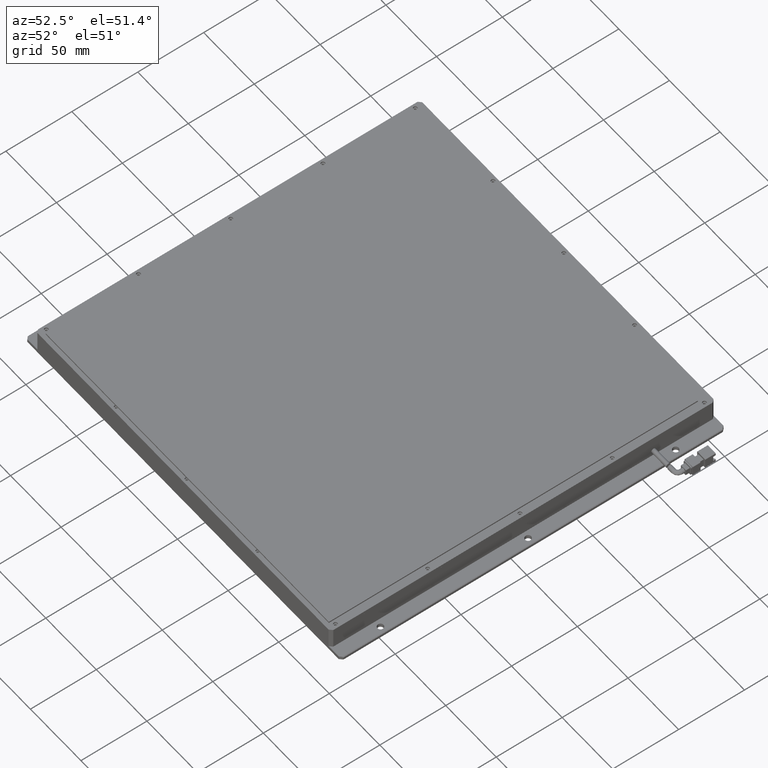
[diagram: clean part render]
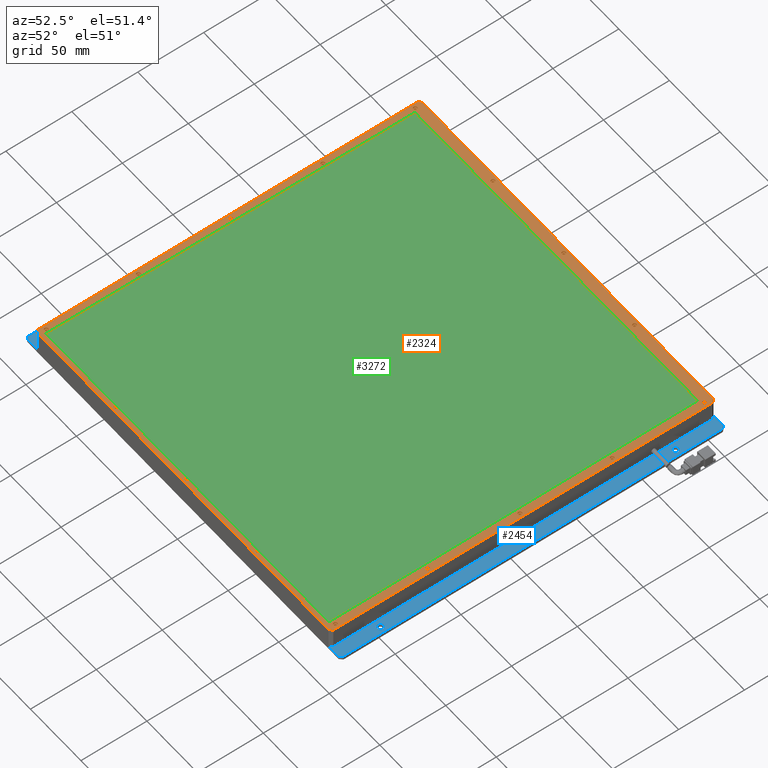
[diagram: same view with three faces highlighted in distinct colors, each labeled with its STEP entity id]
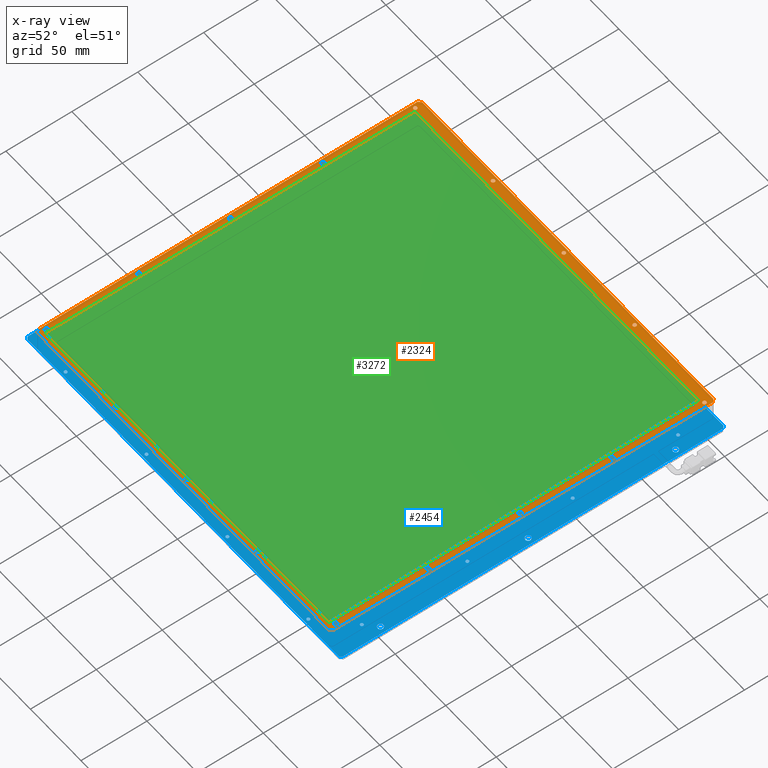
[diagram: x-ray of the same camera — body ghosted, the three highlighted faces saturated]
A machine part, auxiliary view with three faces highlighted in distinct colors.
The next image is the same camera in x-ray (body ghosted, the three faces saturated) — at least one of them is partly hidden behind the body in this view.
Their STEP definitions:

[orange] entity #2324 — the highlighted planar face has unit normal (0, 0, 1).
#8 = EDGE_CURVE ( 'NONE', #19834, #13903, #16694, .T. ) ;
#211 = DIRECTION ( 'NONE',  ( 1.000000000000000000, 0.0000000000000000000, 0.0000000000000000000 ) ) ;
#285 = ORIENTED_EDGE ( 'NONE', *, *, #18411, .T. ) ;
#353 = CARTESIAN_POINT ( 'NONE',  ( -111.0806771263418700, -132.7301954307733900, 8.999999999971805700 ) ) ;
#404 = DIRECTION ( 'NONE',  ( 1.000000000000000000, 0.0000000000000000000, 0.0000000000000000000 ) ) ;
#438 = AXIS2_PLACEMENT_3D ( 'NONE', #6409, #10118, #11957 ) ;
#497 = VECTOR ( 'NONE', #16950, 1000.000000000000000 ) ;
#536 = DIRECTION ( 'NONE',  ( -0.0000000000000000000, -0.0000000000000000000, -1.000000000000000000 ) ) ;
#541 = EDGE_LOOP ( 'NONE', ( #14132, #6752, #887, #22528, #12983, #16679, #23258, #11908, #15326, #776, #19140, #2083, #23052, #16074, #7744, #15613 ) ) ;
#577 = VERTEX_POINT ( 'NONE', #14210 ) ;
#618 = DIRECTION ( 'NONE',  ( 1.000000000000000000, 0.0000000000000000000, 0.0000000000000000000 ) ) ;
#670 = CARTESIAN_POINT ( 'NONE',  ( 177.3193228736581400, 83.26980456922656500, 8.999999999971805700 ) ) ;
#745 = VERTEX_POINT ( 'NONE', #23729 ) ;
#753 = EDGE_CURVE ( 'NONE', #2306, #745, #14326, .T. ) ;
#776 = ORIENTED_EDGE ( 'NONE', *, *, #3613, .T. ) ;
#875 = VERTEX_POINT ( 'NONE', #3282 ) ;
#887 = ORIENTED_EDGE ( 'NONE', *, *, #3500, .T. ) ;
#923 = CIRCLE ( 'NONE', #1854, 1.399999999999984600 ) ;
#930 = EDGE_CURVE ( 'NONE', #745, #2306, #22871, .T. ) ;
#962 = DIRECTION ( 'NONE',  ( 1.000000000000000000, 0.0000000000000000000, 0.0000000000000000000 ) ) ;
#1163 = DIRECTION ( 'NONE',  ( -1.000000000000000000, -0.0000000000000000000, -0.0000000000000000000 ) ) ;
#1164 = FACE_BOUND ( 'NONE', #4917, .T. ) ;
#1240 = DIRECTION ( 'NONE',  ( 0.0000000000000000000, 0.0000000000000000000, 1.000000000000000000 ) ) ;
#1299 = DIRECTION ( 'NONE',  ( -0.0000000000000000000, -0.0000000000000000000, -1.000000000000000000 ) ) ;
#1411 = CARTESIAN_POINT ( 'NONE',  ( 102.9193228736581000, -129.7301954307734500, 8.999999999971805700 ) ) ;
#1451 = CARTESIAN_POINT ( 'NONE',  ( -113.0806771263418100, 157.2698045692265800, 8.999999999971805700 ) ) ;
#1456 = DIRECTION ( 'NONE',  ( -0.0000000000000000000, -0.0000000000000000000, -1.000000000000000000 ) ) ;
#1457 = VERTEX_POINT ( 'NONE', #7915 ) ;
#1463 = CIRCLE ( 'NONE', #18243, 1.399999999999984600 ) ;
#1529 = DIRECTION ( 'NONE',  ( -0.7071067811865474600, -0.7071067811865474600, -0.0000000000000000000 ) ) ;
#1594 = VERTEX_POINT ( 'NONE', #9859 ) ;
#1605 = DIRECTION ( 'NONE',  ( -0.0000000000000000000, -0.0000000000000000000, -1.000000000000000000 ) ) ;
#1640 = CARTESIAN_POINT ( 'NONE',  ( 32.91932287365813200, 156.2698045692266100, 8.999999999971805700 ) ) ;
#1643 = CARTESIAN_POINT ( 'NONE',  ( 174.5193228736581300, -56.73019543077345600, 8.999999999971805700 ) ) ;
#1812 = DIRECTION ( 'NONE',  ( 1.000000000000000000, 0.0000000000000000000, 0.0000000000000000000 ) ) ;
#1833 = CARTESIAN_POINT ( 'NONE',  ( 175.9193228736581300, -126.7301954307734600, 8.999999999971805700 ) ) ;
#1854 = AXIS2_PLACEMENT_3D ( 'NONE', #12723, #1605, #18286 ) ;
#1861 = CARTESIAN_POINT ( 'NONE',  ( 174.5193228736581800, 83.26980456922656500, 8.999999999971805700 ) ) ;
#1915 = DIRECTION ( 'NONE',  ( 1.000000000000000000, 0.0000000000000000000, 0.0000000000000000000 ) ) ;
#1967 = EDGE_CURVE ( 'NONE', #875, #16966, #23082, .T. ) ;
#2002 = CARTESIAN_POINT ( 'NONE',  ( 31.51932287365814700, 156.2698045692266100, 8.999999999971805700 ) ) ;
#2007 = DIRECTION ( 'NONE',  ( -0.0000000000000000000, -0.0000000000000000000, -1.000000000000000000 ) ) ;
#2083 = ORIENTED_EDGE ( 'NONE', *, *, #13856, .T. ) ;
#2101 = EDGE_CURVE ( 'NONE', #16966, #875, #13643, .T. ) ;
#2143 = DIRECTION ( 'NONE',  ( 1.000000000000000000, 0.0000000000000000000, 0.0000000000000000000 ) ) ;
#2248 = CARTESIAN_POINT ( 'NONE',  ( -113.0806771263418400, -132.7301954307733900, 8.999999999971805700 ) ) ;
#2272 = DIRECTION ( 'NONE',  ( -0.0000000000000000000, -0.0000000000000000000, -1.000000000000000000 ) ) ;
#2287 = DIRECTION ( 'NONE',  ( 1.000000000000000000, 0.0000000000000000000, 0.0000000000000000000 ) ) ;
#2306 = VERTEX_POINT ( 'NONE', #6581 ) ;
#2324 = ADVANCED_FACE ( 'NONE', ( #9270, #15350, #4663, #3492, #22484, #12133, #1164, #16481, #10400, #5524, #19606, #14771, #9846, #19034, #23338 ), #18349, .T. ) ;
#2418 = CARTESIAN_POINT ( 'NONE',  ( 175.9193228736581600, 13.26980456922655100, 8.999999999971805700 ) ) ;
#2470 = EDGE_CURVE ( 'NONE', #16908, #15045, #6345, .T. ) ;
#2479 = VERTEX_POINT ( 'NONE', #14923 ) ;
#2602 = CIRCLE ( 'NONE', #10017, 1.399999999999984600 ) ;
#2786 = ORIENTED_EDGE ( 'NONE', *, *, #13995, .T. ) ;
#2922 = DIRECTION ( 'NONE',  ( -0.0000000000000000000, -0.0000000000000000000, -1.000000000000000000 ) ) ;
#2927 = DIRECTION ( 'NONE',  ( 1.000000000000000000, 0.0000000000000000000, 0.0000000000000000000 ) ) ;
#2951 = CARTESIAN_POINT ( 'NONE',  ( 32.91932287365807500, -129.7301954307734500, 8.999999999971805700 ) ) ;
#2957 = AXIS2_PLACEMENT_3D ( 'NONE', #19159, #19315, #962 ) ;
#2995 = AXIS2_PLACEMENT_3D ( 'NONE', #6818, #19770, #14281 ) ;
#3271 = CARTESIAN_POINT ( 'NONE',  ( 177.3193228736581400, -56.73019543077345600, 8.999999999971805700 ) ) ;
#3282 = CARTESIAN_POINT ( 'NONE',  ( -111.4806771263418600, 13.26980456922655100, 8.999999999971805700 ) ) ;
#3405 = DIRECTION ( 'NONE',  ( -0.0000000000000000000, -0.0000000000000000000, -1.000000000000000000 ) ) ;
#3419 = EDGE_LOOP ( 'NONE', ( #14376, #21590 ) ) ;
#3440 = VERTEX_POINT ( 'NONE', #7383 ) ;
#3492 = FACE_BOUND ( 'NONE', #9783, .T. ) ;
#3500 = EDGE_CURVE ( 'NONE', #15247, #16143, #16915, .T. ) ;
#3591 = DIRECTION ( 'NONE',  ( 1.000000000000000000, 0.0000000000000000000, 0.0000000000000000000 ) ) ;
#3605 = CARTESIAN_POINT ( 'NONE',  ( 102.9193228736581500, 156.2698045692266100, 8.999999999971805700 ) ) ;
#3613 = EDGE_CURVE ( 'NONE', #14743, #13547, #15194, .T. ) ;
#3706 = CIRCLE ( 'NONE', #13279, 1.399999999999984600 ) ;
#3770 = DIRECTION ( 'NONE',  ( -0.0000000000000000000, -0.0000000000000000000, -1.000000000000000000 ) ) ;
#3975 = CARTESIAN_POINT ( 'NONE',  ( 175.9193228736581600, 153.2698045692265800, 8.999999999971805700 ) ) ;
#4104 = DIRECTION ( 'NONE',  ( 1.000000000000000000, 0.0000000000000000000, 0.0000000000000000000 ) ) ;
#4152 = CARTESIAN_POINT ( 'NONE',  ( 175.9193228736581600, 153.2698045692265800, 8.999999999971805700 ) ) ;
#4188 = EDGE_CURVE ( 'NONE', #6781, #8352, #14576, .T. ) ;
#4207 = CARTESIAN_POINT ( 'NONE',  ( -108.6806771263418900, -126.7301954307734600, 8.999999999971805700 ) ) ;
#4550 = CARTESIAN_POINT ( 'NONE',  ( 34.28702507592382900, -129.4312126789007200, 8.999999999971805700 ) ) ;
#4601 = ORIENTED_EDGE ( 'NONE', *, *, #10522, .T. ) ;
#4619 = EDGE_CURVE ( 'NONE', #13547, #8456, #15709, .T. ) ;
#4663 = FACE_BOUND ( 'NONE', #16568, .T. ) ;
#4750 = CARTESIAN_POINT ( 'NONE',  ( -113.0806771263418400, 159.2698045692265800, 8.999999999971805700 ) ) ;
#4886 = DIRECTION ( 'NONE',  ( 1.000000000000000000, 0.0000000000000000000, 0.0000000000000000000 ) ) ;
#4917 = EDGE_LOOP ( 'NONE', ( #15589, #2786 ) ) ;
#5114 = DIRECTION ( 'NONE',  ( 1.000000000000000000, 0.0000000000000000000, 0.0000000000000000000 ) ) ;
#5213 = EDGE_CURVE ( 'NONE', #8115, #15852, #14493, .T. ) ;
#5220 = LINE ( 'NONE', #10839, #17621 ) ;
#5250 = ORIENTED_EDGE ( 'NONE', *, *, #5924, .T. ) ;
#5462 = DIRECTION ( 'NONE',  ( -0.0000000000000000000, -0.0000000000000000000, -1.000000000000000000 ) ) ;
#5469 = DIRECTION ( 'NONE',  ( -0.7071067811865474600, 0.7071067811865474600, -0.0000000000000000000 ) ) ;
#5489 = CARTESIAN_POINT ( 'NONE',  ( -108.6806771263418900, -56.73019543077345600, 8.999999999971805700 ) ) ;
#5524 = FACE_BOUND ( 'NONE', #7851, .T. ) ;
#5541 = EDGE_CURVE ( 'NONE', #15857, #18117, #2602, .T. ) ;
#5563 = CARTESIAN_POINT ( 'NONE',  ( -111.0806771263418700, -132.7301954307733900, 8.999999999971805700 ) ) ;
#5652 = VECTOR ( 'NONE', #23756, 1000.000000000000000 ) ;
#5683 = ORIENTED_EDGE ( 'NONE', *, *, #1967, .T. ) ;
#5745 = AXIS2_PLACEMENT_3D ( 'NONE', #3975, #16862, #404 ) ;
#5767 = AXIS2_PLACEMENT_3D ( 'NONE', #12189, #15929, #4886 ) ;
#5811 = CARTESIAN_POINT ( 'NONE',  ( -111.4806771263418600, 83.26980456922656500, 8.999999999971805700 ) ) ;
#5842 = VERTEX_POINT ( 'NONE', #12011 ) ;
#5924 = EDGE_CURVE ( 'NONE', #19223, #17607, #3706, .T. ) ;
#6004 = EDGE_CURVE ( 'NONE', #11786, #10754, #9449, .T. ) ;
#6112 = CARTESIAN_POINT ( 'NONE',  ( 175.9193228736581600, 83.26980456922656500, 8.999999999971805700 ) ) ;
#6113 = DIRECTION ( 'NONE',  ( 1.000000000000000000, 0.0000000000000000000, 0.0000000000000000000 ) ) ;
#6126 = EDGE_CURVE ( 'NONE', #7026, #14622, #20653, .T. ) ;
#6231 = LINE ( 'NONE', #12494, #5652 ) ;
#6261 = DIRECTION ( 'NONE',  ( 1.000000000000000000, 0.0000000000000000000, 0.0000000000000000000 ) ) ;
#6278 = VERTEX_POINT ( 'NONE', #5811 ) ;
#6345 = CIRCLE ( 'NONE', #7031, 1.399999999999984600 ) ;
#6409 = CARTESIAN_POINT ( 'NONE',  ( -37.08067712634193200, -129.7301954307734500, 8.999999999971805700 ) ) ;
#6571 = LINE ( 'NONE', #20472, #497 ) ;
#6581 = CARTESIAN_POINT ( 'NONE',  ( 101.5193228736581500, 156.2698045692266100, 8.999999999971805700 ) ) ;
#6596 = VERTEX_POINT ( 'NONE', #670 ) ;
#6626 = CARTESIAN_POINT ( 'NONE',  ( -107.0806771263418400, -129.4312126789007200, 8.999999999971805700 ) ) ;
#6742 = CARTESIAN_POINT ( 'NONE',  ( -107.0806771263418400, -129.4312126789007200, 8.999999999971805700 ) ) ;
#6752 = ORIENTED_EDGE ( 'NONE', *, *, #19301, .T. ) ;
#6781 = VERTEX_POINT ( 'NONE', #17835 ) ;
#6818 = CARTESIAN_POINT ( 'NONE',  ( 175.9193228736581300, -126.7301954307734600, 8.999999999971805700 ) ) ;
#6819 = DIRECTION ( 'NONE',  ( -0.0000000000000000000, -0.0000000000000000000, -1.000000000000000000 ) ) ;
#6855 = CIRCLE ( 'NONE', #15287, 1.399999999999984600 ) ;
#6870 = DIRECTION ( 'NONE',  ( 1.000000000000000000, 0.0000000000000000000, 0.0000000000000000000 ) ) ;
#6875 = VERTEX_POINT ( 'NONE', #23108 ) ;
#6884 = AXIS2_PLACEMENT_3D ( 'NONE', #10572, #3405, #5114 ) ;
#6963 = ORIENTED_EDGE ( 'NONE', *, *, #21325, .T. ) ;
#7026 = VERTEX_POINT ( 'NONE', #10961 ) ;
#7028 = CARTESIAN_POINT ( 'NONE',  ( 32.91932287365813200, 156.2698045692266100, 8.999999999971805700 ) ) ;
#7031 = AXIS2_PLACEMENT_3D ( 'NONE', #16813, #3770, #211 ) ;
#7166 = AXIS2_PLACEMENT_3D ( 'NONE', #15254, #20769, #6113 ) ;
#7223 = DIRECTION ( 'NONE',  ( -0.0000000000000000000, -0.0000000000000000000, -1.000000000000000000 ) ) ;
#7241 = EDGE_CURVE ( 'NONE', #18107, #3440, #9628, .T. ) ;
#7383 = CARTESIAN_POINT ( 'NONE',  ( 174.5193228736581800, 153.2698045692265800, 8.999999999971805700 ) ) ;
#7384 = EDGE_LOOP ( 'NONE', ( #19655, #14239 ) ) ;
#7394 = DIRECTION ( 'NONE',  ( -0.0000000000000000000, -1.000000000000000000, -0.0000000000000000000 ) ) ;
#7589 = DIRECTION ( 'NONE',  ( -0.0000000000000000000, -0.0000000000000000000, -1.000000000000000000 ) ) ;
#7607 = VECTOR ( 'NONE', #7394, 1000.000000000000000 ) ;
#7667 = AXIS2_PLACEMENT_3D ( 'NONE', #9870, #8166, #10098 ) ;
#7744 = ORIENTED_EDGE ( 'NONE', *, *, #2470, .T. ) ;
#7749 = EDGE_CURVE ( 'NONE', #14622, #5842, #14556, .T. ) ;
#7763 = EDGE_LOOP ( 'NONE', ( #17825, #8680 ) ) ;
#7796 = DIRECTION ( 'NONE',  ( -0.0000000000000000000, -0.0000000000000000000, -1.000000000000000000 ) ) ;
#7851 = EDGE_LOOP ( 'NONE', ( #13521, #5683 ) ) ;
#7899 = ORIENTED_EDGE ( 'NONE', *, *, #13868, .T. ) ;
#7915 = CARTESIAN_POINT ( 'NONE',  ( -108.6806771263418900, 83.26980456922656500, 8.999999999971805700 ) ) ;
#8094 = AXIS2_PLACEMENT_3D ( 'NONE', #2418, #16924, #11518 ) ;
#8115 = VERTEX_POINT ( 'NONE', #3271 ) ;
#8166 = DIRECTION ( 'NONE',  ( -0.0000000000000000000, -0.0000000000000000000, -1.000000000000000000 ) ) ;
#8212 = ORIENTED_EDGE ( 'NONE', *, *, #11702, .T. ) ;
#8285 = EDGE_CURVE ( 'NONE', #3440, #18107, #14492, .T. ) ;
#8311 = LINE ( 'NONE', #20056, #19518 ) ;
#8338 = ORIENTED_EDGE ( 'NONE', *, *, #15266, .T. ) ;
#8352 = VERTEX_POINT ( 'NONE', #11311 ) ;
#8456 = VERTEX_POINT ( 'NONE', #18855 ) ;
#8485 = DIRECTION ( 'NONE',  ( 1.000000000000000000, 0.0000000000000000000, 0.0000000000000000000 ) ) ;
#8545 = AXIS2_PLACEMENT_3D ( 'NONE', #23377, #1240, #1812 ) ;
#8554 = EDGE_CURVE ( 'NONE', #14386, #6875, #16726, .T. ) ;
#8628 = CARTESIAN_POINT ( 'NONE',  ( 172.9193228736581900, -129.4312126789007200, 8.999999999971805700 ) ) ;
#8680 = ORIENTED_EDGE ( 'NONE', *, *, #11809, .T. ) ;
#8814 = DIRECTION ( 'NONE',  ( -0.0000000000000000000, -0.0000000000000000000, -1.000000000000000000 ) ) ;
#8826 = ORIENTED_EDGE ( 'NONE', *, *, #13252, .T. ) ;
#8866 = CIRCLE ( 'NONE', #8094, 1.399999999999984600 ) ;
#8946 = DIRECTION ( 'NONE',  ( 0.0000000000000000000, 1.000000000000000000, 0.0000000000000000000 ) ) ;
#8977 = VECTOR ( 'NONE', #23192, 1000.000000000000000 ) ;
#9149 = VERTEX_POINT ( 'NONE', #23877 ) ;
#9270 = FACE_BOUND ( 'NONE', #541, .T. ) ;
#9273 = EDGE_CURVE ( 'NONE', #1457, #6278, #12883, .T. ) ;
#9330 = VERTEX_POINT ( 'NONE', #22483 ) ;
#9346 = LINE ( 'NONE', #4750, #14545 ) ;
#9373 = CARTESIAN_POINT ( 'NONE',  ( 104.2870250759238400, -129.4312126789007200, 8.999999999971805700 ) ) ;
#9449 = LINE ( 'NONE', #8628, #23839 ) ;
#9572 = AXIS2_PLACEMENT_3D ( 'NONE', #20802, #2272, #15208 ) ;
#9628 = CIRCLE ( 'NONE', #5745, 1.399999999999984600 ) ;
#9632 = EDGE_CURVE ( 'NONE', #14386, #16908, #19720, .T. ) ;
#9783 = EDGE_LOOP ( 'NONE', ( #22546, #7899 ) ) ;
#9835 = LINE ( 'NONE', #10341, #8977 ) ;
#9846 = FACE_BOUND ( 'NONE', #23718, .T. ) ;
#9858 = DIRECTION ( 'NONE',  ( 1.000000000000000000, 0.0000000000000000000, 0.0000000000000000000 ) ) ;
#9859 = CARTESIAN_POINT ( 'NONE',  ( 176.9193228736581000, 159.2698045692266100, 8.999999999971805700 ) ) ;
#9870 = CARTESIAN_POINT ( 'NONE',  ( 175.9193228736581600, 13.26980456922655100, 8.999999999971805700 ) ) ;
#10017 = AXIS2_PLACEMENT_3D ( 'NONE', #1640, #16168, #16407 ) ;
#10098 = DIRECTION ( 'NONE',  ( 1.000000000000000000, 0.0000000000000000000, 0.0000000000000000000 ) ) ;
#10118 = DIRECTION ( 'NONE',  ( -0.0000000000000000000, -0.0000000000000000000, -1.000000000000000000 ) ) ;
#10201 = CIRCLE ( 'NONE', #22029, 1.399999999999984600 ) ;
#10254 = EDGE_CURVE ( 'NONE', #16880, #23381, #16889, .T. ) ;
#10295 = DIRECTION ( 'NONE',  ( 1.000000000000000000, 0.0000000000000000000, 0.0000000000000000000 ) ) ;
#10339 = DIRECTION ( 'NONE',  ( -0.0000000000000000000, -0.0000000000000000000, -1.000000000000000000 ) ) ;
#10341 = CARTESIAN_POINT ( 'NONE',  ( -107.0806771263418400, -129.4312126789007200, 8.999999999971805700 ) ) ;
#10400 = FACE_BOUND ( 'NONE', #7763, .T. ) ;
#10433 = ORIENTED_EDGE ( 'NONE', *, *, #22181, .T. ) ;
#10450 = VECTOR ( 'NONE', #8946, 1000.000000000000000 ) ;
#10522 = EDGE_CURVE ( 'NONE', #9149, #21229, #10201, .T. ) ;
#10547 = CARTESIAN_POINT ( 'NONE',  ( -38.44837932860767900, -129.4312126789007200, 8.999999999971805700 ) ) ;
#10554 = CARTESIAN_POINT ( 'NONE',  ( -110.0806771263418700, -126.7301954307734600, 8.999999999971805700 ) ) ;
#10572 = CARTESIAN_POINT ( 'NONE',  ( 32.91932287365807500, -129.7301954307734500, 8.999999999971805700 ) ) ;
#10637 = EDGE_CURVE ( 'NONE', #577, #19834, #21986, .T. ) ;
#10651 = VERTEX_POINT ( 'NONE', #23712 ) ;
#10754 = VERTEX_POINT ( 'NONE', #16809 ) ;
#10764 = CIRCLE ( 'NONE', #11287, 1.399999999999984600 ) ;
#10792 = CIRCLE ( 'NONE', #2957, 1.399999999999984600 ) ;
#10839 = CARTESIAN_POINT ( 'NONE',  ( 176.9193228736581600, 159.2698045692265800, 8.999999999971805700 ) ) ;
#10848 = VERTEX_POINT ( 'NONE', #14999 ) ;
#10917 = ORIENTED_EDGE ( 'NONE', *, *, #4188, .T. ) ;
#10942 = DIRECTION ( 'NONE',  ( -0.0000000000000000000, -0.0000000000000000000, -1.000000000000000000 ) ) ;
#10961 = CARTESIAN_POINT ( 'NONE',  ( -111.0806771263417500, 159.2698045692265800, 8.999999999971805700 ) ) ;
#11001 = DIRECTION ( 'NONE',  ( 1.000000000000000000, 0.0000000000000000000, 0.0000000000000000000 ) ) ;
#11045 = CARTESIAN_POINT ( 'NONE',  ( -110.0806771263418700, 83.26980456922656500, 8.999999999971805700 ) ) ;
#11048 = EDGE_CURVE ( 'NONE', #16143, #13903, #11613, .T. ) ;
#11104 = AXIS2_PLACEMENT_3D ( 'NONE', #19426, #10339, #8485 ) ;
#11148 = DIRECTION ( 'NONE',  ( -0.0000000000000000000, -0.0000000000000000000, -1.000000000000000000 ) ) ;
#11222 = VERTEX_POINT ( 'NONE', #16550 ) ;
#11287 = AXIS2_PLACEMENT_3D ( 'NONE', #20954, #17024, #9858 ) ;
#11311 = CARTESIAN_POINT ( 'NONE',  ( 178.9193228736581000, 157.2698045692266400, 8.999999999971805700 ) ) ;
#11410 = VECTOR ( 'NONE', #22276, 1000.000000000000000 ) ;
#11518 = DIRECTION ( 'NONE',  ( 1.000000000000000000, 0.0000000000000000000, 0.0000000000000000000 ) ) ;
#11613 = CIRCLE ( 'NONE', #438, 1.399999999999984600 ) ;
#11702 = EDGE_CURVE ( 'NONE', #21229, #9149, #20170, .T. ) ;
#11731 = CARTESIAN_POINT ( 'NONE',  ( -107.0806771263418400, -129.4312126789007200, 8.999999999971805700 ) ) ;
#11786 = VERTEX_POINT ( 'NONE', #16620 ) ;
#11809 = EDGE_CURVE ( 'NONE', #6278, #1457, #17600, .T. ) ;
#11903 = AXIS2_PLACEMENT_3D ( 'NONE', #18259, #5462, #3591 ) ;
#11908 = ORIENTED_EDGE ( 'NONE', *, *, #6004, .F. ) ;
#11913 = EDGE_LOOP ( 'NONE', ( #6963, #5250 ) ) ;
#11957 = DIRECTION ( 'NONE',  ( 1.000000000000000000, 0.0000000000000000000, 0.0000000000000000000 ) ) ;
#11969 = AXIS2_PLACEMENT_3D ( 'NONE', #13286, #11148, #2143 ) ;
#12011 = CARTESIAN_POINT ( 'NONE',  ( -113.0806771263418400, -130.7301954307733600, 8.999999999971805700 ) ) ;
#12040 = ORIENTED_EDGE ( 'NONE', *, *, #5213, .T. ) ;
#12048 = DIRECTION ( 'NONE',  ( 1.000000000000000000, 0.0000000000000000000, 0.0000000000000000000 ) ) ;
#12133 = FACE_BOUND ( 'NONE', #17131, .T. ) ;
#12147 = AXIS2_PLACEMENT_3D ( 'NONE', #19590, #1299, #16083 ) ;
#12157 = DIRECTION ( 'NONE',  ( 1.000000000000000000, 0.0000000000000000000, 0.0000000000000000000 ) ) ;
#12189 = CARTESIAN_POINT ( 'NONE',  ( -110.0806771263418700, -126.7301954307734600, 8.999999999971805700 ) ) ;
#12201 = ORIENTED_EDGE ( 'NONE', *, *, #10254, .T. ) ;
#12427 = EDGE_CURVE ( 'NONE', #10651, #11222, #8866, .T. ) ;
#12471 = CARTESIAN_POINT ( 'NONE',  ( 178.9193228736581300, 159.2698045692265800, 8.999999999971805700 ) ) ;
#12475 = DIRECTION ( 'NONE',  ( -0.0000000000000000000, -0.0000000000000000000, -1.000000000000000000 ) ) ;
#12494 = CARTESIAN_POINT ( 'NONE',  ( 178.9193228736581300, -130.7301954307733600, 8.999999999971805700 ) ) ;
#12588 = DIRECTION ( 'NONE',  ( 1.000000000000000000, 0.0000000000000000000, 0.0000000000000000000 ) ) ;
#12645 = EDGE_CURVE ( 'NONE', #15275, #22733, #19765, .T. ) ;
#12690 = CARTESIAN_POINT ( 'NONE',  ( 34.31932287365811600, 156.2698045692266100, 8.999999999971805700 ) ) ;
#12711 = DIRECTION ( 'NONE',  ( 1.000000000000000000, 0.0000000000000000000, 0.0000000000000000000 ) ) ;
#12723 = CARTESIAN_POINT ( 'NONE',  ( -110.0806771263418700, -56.73019543077345600, 8.999999999971805700 ) ) ;
#12775 = CARTESIAN_POINT ( 'NONE',  ( -38.48067712634186000, 156.2698045692266100, 8.999999999971805700 ) ) ;
#12824 = ORIENTED_EDGE ( 'NONE', *, *, #753, .T. ) ;
#12883 = CIRCLE ( 'NONE', #11969, 1.399999999999984600 ) ;
#12893 = CARTESIAN_POINT ( 'NONE',  ( -110.0806771263418700, 13.26980456922655100, 8.999999999971805700 ) ) ;
#12918 = DIRECTION ( 'NONE',  ( 1.000000000000000000, 0.0000000000000000000, 0.0000000000000000000 ) ) ;
#12983 = ORIENTED_EDGE ( 'NONE', *, *, #8, .F. ) ;
#12986 = VECTOR ( 'NONE', #2927, 1000.000000000000000 ) ;
#13068 = CARTESIAN_POINT ( 'NONE',  ( 177.3193228736581400, 153.2698045692265800, 8.999999999971805700 ) ) ;
#13208 = EDGE_CURVE ( 'NONE', #2479, #10848, #9835, .T. ) ;
#13252 = EDGE_CURVE ( 'NONE', #18117, #15857, #19324, .T. ) ;
#13279 = AXIS2_PLACEMENT_3D ( 'NONE', #10554, #2922, #19639 ) ;
#13286 = CARTESIAN_POINT ( 'NONE',  ( -110.0806771263418700, 83.26980456922656500, 8.999999999971805700 ) ) ;
#13335 = AXIS2_PLACEMENT_3D ( 'NONE', #18157, #1456, #12588 ) ;
#13380 = DIRECTION ( 'NONE',  ( 1.000000000000000000, 0.0000000000000000000, 0.0000000000000000000 ) ) ;
#13458 = CARTESIAN_POINT ( 'NONE',  ( -108.6806771263418900, 13.26980456922655100, 8.999999999971805700 ) ) ;
#13521 = ORIENTED_EDGE ( 'NONE', *, *, #2101, .T. ) ;
#13547 = VERTEX_POINT ( 'NONE', #16871 ) ;
#13603 = ORIENTED_EDGE ( 'NONE', *, *, #930, .T. ) ;
#13643 = CIRCLE ( 'NONE', #7166, 1.399999999999984600 ) ;
#13856 = EDGE_CURVE ( 'NONE', #8456, #6875, #20106, .T. ) ;
#13868 = EDGE_CURVE ( 'NONE', #20000, #6596, #6855, .T. ) ;
#13903 = VERTEX_POINT ( 'NONE', #10547 ) ;
#13995 = EDGE_CURVE ( 'NONE', #22733, #15275, #16956, .T. ) ;
#14035 = DIRECTION ( 'NONE',  ( -0.0000000000000000000, -0.0000000000000000000, -1.000000000000000000 ) ) ;
#14042 = AXIS2_PLACEMENT_3D ( 'NONE', #1833, #10942, #23824 ) ;
#14056 = ORIENTED_EDGE ( 'NONE', *, *, #8285, .T. ) ;
#14081 = CIRCLE ( 'NONE', #9572, 1.399999999999984600 ) ;
#14132 = ORIENTED_EDGE ( 'NONE', *, *, #13208, .F. ) ;
#14210 = CARTESIAN_POINT ( 'NONE',  ( -107.0806771263418400, 150.5687873210993100, 8.999999999971805700 ) ) ;
#14239 = ORIENTED_EDGE ( 'NONE', *, *, #12427, .T. ) ;
#14281 = DIRECTION ( 'NONE',  ( 1.000000000000000000, 0.0000000000000000000, 0.0000000000000000000 ) ) ;
#14284 = DIRECTION ( 'NONE',  ( 1.000000000000000000, 0.0000000000000000000, 0.0000000000000000000 ) ) ;
#14326 = CIRCLE ( 'NONE', #16865, 1.399999999999984600 ) ;
#14376 = ORIENTED_EDGE ( 'NONE', *, *, #19725, .T. ) ;
#14386 = VERTEX_POINT ( 'NONE', #4550 ) ;
#14492 = CIRCLE ( 'NONE', #22550, 1.399999999999984600 ) ;
#14493 = CIRCLE ( 'NONE', #12147, 1.400000000000012300 ) ;
#14545 = VECTOR ( 'NONE', #1163, 1000.000000000000000 ) ;
#14556 = LINE ( 'NONE', #18435, #7607 ) ;
#14576 = LINE ( 'NONE', #12471, #10450 ) ;
#14622 = VERTEX_POINT ( 'NONE', #1451 ) ;
#14743 = VERTEX_POINT ( 'NONE', #9373 ) ;
#14771 = FACE_BOUND ( 'NONE', #11913, .T. ) ;
#14846 = DIRECTION ( 'NONE',  ( -0.0000000000000000000, -0.0000000000000000000, -1.000000000000000000 ) ) ;
#14923 = CARTESIAN_POINT ( 'NONE',  ( -35.71297492407617800, -129.4312126789007200, 8.999999999971805700 ) ) ;
#14999 = CARTESIAN_POINT ( 'NONE',  ( 31.55162067139232500, -129.4312126789007200, 8.999999999971805700 ) ) ;
#15045 = VERTEX_POINT ( 'NONE', #17803 ) ;
#15100 = CARTESIAN_POINT ( 'NONE',  ( 175.9193228736581300, -56.73019543077345600, 8.999999999971805700 ) ) ;
#15194 = CIRCLE ( 'NONE', #17796, 1.399999999999984600 ) ;
#15208 = DIRECTION ( 'NONE',  ( 1.000000000000000000, 0.0000000000000000000, 0.0000000000000000000 ) ) ;
#15247 = VERTEX_POINT ( 'NONE', #22420 ) ;
#15254 = CARTESIAN_POINT ( 'NONE',  ( -110.0806771263418700, 13.26980456922655100, 8.999999999971805700 ) ) ;
#15266 = EDGE_CURVE ( 'NONE', #15852, #8115, #20233, .T. ) ;
#15275 = VERTEX_POINT ( 'NONE', #22186 ) ;
#15287 = AXIS2_PLACEMENT_3D ( 'NONE', #16134, #12475, #21650 ) ;
#15326 = ORIENTED_EDGE ( 'NONE', *, *, #21597, .F. ) ;
#15350 = FACE_OUTER_BOUND ( 'NONE', #23236, .T. ) ;
#15451 = EDGE_CURVE ( 'NONE', #15045, #10848, #21124, .T. ) ;
#15589 = ORIENTED_EDGE ( 'NONE', *, *, #12645, .T. ) ;
#15613 = ORIENTED_EDGE ( 'NONE', *, *, #15451, .T. ) ;
#15672 = AXIS2_PLACEMENT_3D ( 'NONE', #11045, #7589, #12918 ) ;
#15698 = VERTEX_POINT ( 'NONE', #12775 ) ;
#15709 = CIRCLE ( 'NONE', #19047, 1.399999999999984600 ) ;
#15750 = DIRECTION ( 'NONE',  ( -0.0000000000000000000, -0.0000000000000000000, -1.000000000000000000 ) ) ;
#15852 = VERTEX_POINT ( 'NONE', #1643 ) ;
#15857 = VERTEX_POINT ( 'NONE', #12690 ) ;
#15929 = DIRECTION ( 'NONE',  ( -0.0000000000000000000, -0.0000000000000000000, -1.000000000000000000 ) ) ;
#16022 = VECTOR ( 'NONE', #18673, 1000.000000000000000 ) ;
#16074 = ORIENTED_EDGE ( 'NONE', *, *, #9632, .T. ) ;
#16083 = DIRECTION ( 'NONE',  ( 1.000000000000000000, 0.0000000000000000000, 0.0000000000000000000 ) ) ;
#16134 = CARTESIAN_POINT ( 'NONE',  ( 175.9193228736581600, 83.26980456922656500, 8.999999999971805700 ) ) ;
#16143 = VERTEX_POINT ( 'NONE', #23032 ) ;
#16168 = DIRECTION ( 'NONE',  ( -0.0000000000000000000, -0.0000000000000000000, -1.000000000000000000 ) ) ;
#16279 = EDGE_CURVE ( 'NONE', #23381, #6781, #6231, .T. ) ;
#16407 = DIRECTION ( 'NONE',  ( 1.000000000000000000, 0.0000000000000000000, 0.0000000000000000000 ) ) ;
#16481 = FACE_BOUND ( 'NONE', #22720, .T. ) ;
#16528 = EDGE_CURVE ( 'NONE', #15698, #9330, #10792, .T. ) ;
#16550 = CARTESIAN_POINT ( 'NONE',  ( 177.3193228736581400, 13.26980456922655100, 8.999999999971805700 ) ) ;
#16568 = EDGE_LOOP ( 'NONE', ( #19528, #14056 ) ) ;
#16585 = CARTESIAN_POINT ( 'NONE',  ( -37.08067712634193200, -129.7301954307734500, 8.999999999971805700 ) ) ;
#16620 = CARTESIAN_POINT ( 'NONE',  ( 172.9193228736581900, -129.4312126789007200, 8.999999999971805700 ) ) ;
#16679 = ORIENTED_EDGE ( 'NONE', *, *, #10637, .F. ) ;
#16694 = LINE ( 'NONE', #11731, #22430 ) ;
#16712 = DIRECTION ( 'NONE',  ( 1.000000000000000000, 0.0000000000000000000, 0.0000000000000000000 ) ) ;
#16726 = LINE ( 'NONE', #6626, #12986 ) ;
#16809 = CARTESIAN_POINT ( 'NONE',  ( 172.9193228736581900, 150.5687873210993100, 8.999999999971805700 ) ) ;
#16813 = CARTESIAN_POINT ( 'NONE',  ( 32.91932287365807500, -129.7301954307734500, 8.999999999971805700 ) ) ;
#16862 = DIRECTION ( 'NONE',  ( -0.0000000000000000000, -0.0000000000000000000, -1.000000000000000000 ) ) ;
#16865 = AXIS2_PLACEMENT_3D ( 'NONE', #3605, #7223, #12711 ) ;
#16871 = CARTESIAN_POINT ( 'NONE',  ( 104.3193228736580800, -129.7301954307734500, 8.999999999971805700 ) ) ;
#16880 = VERTEX_POINT ( 'NONE', #353 ) ;
#16889 = LINE ( 'NONE', #2248, #16022 ) ;
#16908 = VERTEX_POINT ( 'NONE', #22395 ) ;
#16915 = CIRCLE ( 'NONE', #21483, 1.399999999999984600 ) ;
#16924 = DIRECTION ( 'NONE',  ( -0.0000000000000000000, -0.0000000000000000000, -1.000000000000000000 ) ) ;
#16950 = DIRECTION ( 'NONE',  ( -1.000000000000000000, -0.0000000000000000000, -0.0000000000000000000 ) ) ;
#16956 = CIRCLE ( 'NONE', #14042, 1.399999999999984600 ) ;
#16966 = VERTEX_POINT ( 'NONE', #13458 ) ;
#16981 = CARTESIAN_POINT ( 'NONE',  ( 102.9193228736581000, -129.7301954307734500, 8.999999999971805700 ) ) ;
#17024 = DIRECTION ( 'NONE',  ( -0.0000000000000000000, -0.0000000000000000000, -1.000000000000000000 ) ) ;
#17131 = EDGE_LOOP ( 'NONE', ( #12040, #8338 ) ) ;
#17322 = AXIS2_PLACEMENT_3D ( 'NONE', #2951, #23060, #12048 ) ;
#17524 = ORIENTED_EDGE ( 'NONE', *, *, #16279, .T. ) ;
#17542 = EDGE_LOOP ( 'NONE', ( #23205, #8826 ) ) ;
#17600 = CIRCLE ( 'NONE', #15672, 1.399999999999984600 ) ;
#17607 = VERTEX_POINT ( 'NONE', #4207 ) ;
#17621 = VECTOR ( 'NONE', #5469, 1000.000000000000100 ) ;
#17790 = CARTESIAN_POINT ( 'NONE',  ( -110.0806771263418700, 153.2698045692265800, 8.999999999971805700 ) ) ;
#17796 = AXIS2_PLACEMENT_3D ( 'NONE', #16981, #7796, #13380 ) ;
#17803 = CARTESIAN_POINT ( 'NONE',  ( 31.51932287365809400, -129.7301954307734500, 8.999999999971805700 ) ) ;
#17825 = ORIENTED_EDGE ( 'NONE', *, *, #9273, .T. ) ;
#17835 = CARTESIAN_POINT ( 'NONE',  ( 178.9193228736581000, -130.7301954307734200, 8.999999999971805700 ) ) ;
#18050 = CARTESIAN_POINT ( 'NONE',  ( -113.0806771263418400, 157.2698045692265800, 8.999999999971805700 ) ) ;
#18107 = VERTEX_POINT ( 'NONE', #13068 ) ;
#18117 = VERTEX_POINT ( 'NONE', #2002 ) ;
#18157 = CARTESIAN_POINT ( 'NONE',  ( -110.0806771263418700, 153.2698045692265800, 8.999999999971805700 ) ) ;
#18243 = AXIS2_PLACEMENT_3D ( 'NONE', #6112, #536, #618 ) ;
#18259 = CARTESIAN_POINT ( 'NONE',  ( 102.9193228736581500, 156.2698045692266100, 8.999999999971805700 ) ) ;
#18268 = VECTOR ( 'NONE', #23545, 1000.000000000000000 ) ;
#18286 = DIRECTION ( 'NONE',  ( 1.000000000000000000, 0.0000000000000000000, 0.0000000000000000000 ) ) ;
#18349 = PLANE ( 'NONE',  #8545 ) ;
#18411 = EDGE_CURVE ( 'NONE', #1594, #7026, #9346, .T. ) ;
#18435 = CARTESIAN_POINT ( 'NONE',  ( -113.0806771263418400, 159.2698045692265800, 8.999999999971805700 ) ) ;
#18511 = DIRECTION ( 'NONE',  ( -0.0000000000000000000, -0.0000000000000000000, -1.000000000000000000 ) ) ;
#18673 = DIRECTION ( 'NONE',  ( 1.000000000000000000, -0.0000000000000000000, -0.0000000000000000000 ) ) ;
#18781 = DIRECTION ( 'NONE',  ( -0.0000000000000000000, -0.0000000000000000000, -1.000000000000000000 ) ) ;
#18855 = CARTESIAN_POINT ( 'NONE',  ( 101.5193228736581100, -129.7301954307734500, 8.999999999971805700 ) ) ;
#18874 = AXIS2_PLACEMENT_3D ( 'NONE', #12893, #2007, #1915 ) ;
#18990 = CIRCLE ( 'NONE', #5767, 1.399999999999984600 ) ;
#19034 = FACE_BOUND ( 'NONE', #17542, .T. ) ;
#19047 = AXIS2_PLACEMENT_3D ( 'NONE', #1411, #6819, #14284 ) ;
#19122 = CARTESIAN_POINT ( 'NONE',  ( -108.6806771263418900, 153.2698045692265800, 8.999999999971805700 ) ) ;
#19140 = ORIENTED_EDGE ( 'NONE', *, *, #4619, .T. ) ;
#19159 = CARTESIAN_POINT ( 'NONE',  ( -37.08067712634187500, 156.2698045692266100, 8.999999999971805700 ) ) ;
#19223 = VERTEX_POINT ( 'NONE', #22611 ) ;
#19301 = EDGE_CURVE ( 'NONE', #2479, #15247, #14081, .T. ) ;
#19315 = DIRECTION ( 'NONE',  ( -0.0000000000000000000, -0.0000000000000000000, -1.000000000000000000 ) ) ;
#19324 = CIRCLE ( 'NONE', #23045, 1.399999999999984600 ) ;
#19426 = CARTESIAN_POINT ( 'NONE',  ( -110.0806771263418700, -56.73019543077345600, 8.999999999971805700 ) ) ;
#19518 = VECTOR ( 'NONE', #16712, 1000.000000000000000 ) ;
#19528 = ORIENTED_EDGE ( 'NONE', *, *, #7241, .T. ) ;
#19569 = ORIENTED_EDGE ( 'NONE', *, *, #20982, .T. ) ;
#19590 = CARTESIAN_POINT ( 'NONE',  ( 175.9193228736581300, -56.73019543077345600, 8.999999999971805700 ) ) ;
#19606 = FACE_BOUND ( 'NONE', #3419, .T. ) ;
#19639 = DIRECTION ( 'NONE',  ( 1.000000000000000000, 0.0000000000000000000, 0.0000000000000000000 ) ) ;
#19655 = ORIENTED_EDGE ( 'NONE', *, *, #22671, .T. ) ;
#19720 = CIRCLE ( 'NONE', #6884, 1.399999999999984600 ) ;
#19725 = EDGE_CURVE ( 'NONE', #22176, #20077, #23163, .T. ) ;
#19765 = CIRCLE ( 'NONE', #2995, 1.399999999999984600 ) ;
#19770 = DIRECTION ( 'NONE',  ( -0.0000000000000000000, -0.0000000000000000000, -1.000000000000000000 ) ) ;
#19834 = VERTEX_POINT ( 'NONE', #23514 ) ;
#20000 = VERTEX_POINT ( 'NONE', #1861 ) ;
#20039 = EDGE_LOOP ( 'NONE', ( #21071, #23901 ) ) ;
#20056 = CARTESIAN_POINT ( 'NONE',  ( -107.0806771263418400, -129.4312126789007200, 8.999999999971805700 ) ) ;
#20077 = VERTEX_POINT ( 'NONE', #20627 ) ;
#20101 = EDGE_CURVE ( 'NONE', #9330, #15698, #10764, .T. ) ;
#20106 = CIRCLE ( 'NONE', #20312, 1.399999999999984600 ) ;
#20170 = CIRCLE ( 'NONE', #13335, 1.399999999999984600 ) ;
#20233 = CIRCLE ( 'NONE', #20996, 1.400000000000012300 ) ;
#20312 = AXIS2_PLACEMENT_3D ( 'NONE', #23162, #15750, #12157 ) ;
#20337 = LINE ( 'NONE', #5563, #11410 ) ;
#20472 = CARTESIAN_POINT ( 'NONE',  ( -107.0806771263418400, 150.5687873210993100, 8.999999999971805700 ) ) ;
#20474 = EDGE_CURVE ( 'NONE', #20077, #22176, #923, .T. ) ;
#20627 = CARTESIAN_POINT ( 'NONE',  ( -111.4806771263418600, -56.73019543077345600, 8.999999999971805700 ) ) ;
#20653 = LINE ( 'NONE', #18050, #22366 ) ;
#20688 = EDGE_CURVE ( 'NONE', #6596, #20000, #1463, .T. ) ;
#20769 = DIRECTION ( 'NONE',  ( -0.0000000000000000000, -0.0000000000000000000, -1.000000000000000000 ) ) ;
#20802 = CARTESIAN_POINT ( 'NONE',  ( -37.08067712634193200, -129.7301954307734500, 8.999999999971805700 ) ) ;
#20954 = CARTESIAN_POINT ( 'NONE',  ( -37.08067712634187500, 156.2698045692266100, 8.999999999971805700 ) ) ;
#20982 = EDGE_CURVE ( 'NONE', #8352, #1594, #5220, .T. ) ;
#20996 = AXIS2_PLACEMENT_3D ( 'NONE', #15100, #18511, #4104 ) ;
#21071 = ORIENTED_EDGE ( 'NONE', *, *, #20101, .T. ) ;
#21124 = CIRCLE ( 'NONE', #17322, 1.399999999999984600 ) ;
#21229 = VERTEX_POINT ( 'NONE', #19122 ) ;
#21325 = EDGE_CURVE ( 'NONE', #17607, #19223, #18990, .T. ) ;
#21483 = AXIS2_PLACEMENT_3D ( 'NONE', #16585, #14846, #11001 ) ;
#21506 = DIRECTION ( 'NONE',  ( 0.0000000000000000000, 1.000000000000000000, 0.0000000000000000000 ) ) ;
#21590 = ORIENTED_EDGE ( 'NONE', *, *, #20474, .T. ) ;
#21597 = EDGE_CURVE ( 'NONE', #14743, #11786, #8311, .T. ) ;
#21650 = DIRECTION ( 'NONE',  ( 1.000000000000000000, 0.0000000000000000000, 0.0000000000000000000 ) ) ;
#21706 = EDGE_CURVE ( 'NONE', #10754, #577, #6571, .T. ) ;
#21986 = LINE ( 'NONE', #6742, #18268 ) ;
#22029 = AXIS2_PLACEMENT_3D ( 'NONE', #17790, #14035, #10295 ) ;
#22176 = VERTEX_POINT ( 'NONE', #5489 ) ;
#22181 = EDGE_CURVE ( 'NONE', #5842, #16880, #20337, .T. ) ;
#22186 = CARTESIAN_POINT ( 'NONE',  ( 177.3193228736581100, -126.7301954307734600, 8.999999999971805700 ) ) ;
#22276 = DIRECTION ( 'NONE',  ( 0.7071067811865425800, -0.7071067811865525700, -0.0000000000000000000 ) ) ;
#22315 = CIRCLE ( 'NONE', #7667, 1.399999999999984600 ) ;
#22366 = VECTOR ( 'NONE', #1529, 1000.000000000000100 ) ;
#22395 = CARTESIAN_POINT ( 'NONE',  ( 34.31932287365805900, -129.7301954307734500, 8.999999999971805700 ) ) ;
#22420 = CARTESIAN_POINT ( 'NONE',  ( -35.68067712634194800, -129.7301954307734500, 8.999999999971805700 ) ) ;
#22430 = VECTOR ( 'NONE', #6261, 1000.000000000000000 ) ;
#22483 = CARTESIAN_POINT ( 'NONE',  ( -35.68067712634189100, 156.2698045692266100, 8.999999999971805700 ) ) ;
#22484 = FACE_BOUND ( 'NONE', #7384, .T. ) ;
#22495 = ORIENTED_EDGE ( 'NONE', *, *, #6126, .T. ) ;
#22528 = ORIENTED_EDGE ( 'NONE', *, *, #11048, .T. ) ;
#22546 = ORIENTED_EDGE ( 'NONE', *, *, #20688, .T. ) ;
#22550 = AXIS2_PLACEMENT_3D ( 'NONE', #4152, #18781, #2287 ) ;
#22611 = CARTESIAN_POINT ( 'NONE',  ( -111.4806771263418600, -126.7301954307734600, 8.999999999971805700 ) ) ;
#22671 = EDGE_CURVE ( 'NONE', #11222, #10651, #22315, .T. ) ;
#22720 = EDGE_LOOP ( 'NONE', ( #8212, #4601 ) ) ;
#22733 = VERTEX_POINT ( 'NONE', #22790 ) ;
#22790 = CARTESIAN_POINT ( 'NONE',  ( 174.5193228736581500, -126.7301954307734600, 8.999999999971805700 ) ) ;
#22871 = CIRCLE ( 'NONE', #11903, 1.399999999999984600 ) ;
#23032 = CARTESIAN_POINT ( 'NONE',  ( -38.48067712634191700, -129.7301954307734500, 8.999999999971805700 ) ) ;
#23045 = AXIS2_PLACEMENT_3D ( 'NONE', #7028, #8814, #6870 ) ;
#23052 = ORIENTED_EDGE ( 'NONE', *, *, #8554, .F. ) ;
#23060 = DIRECTION ( 'NONE',  ( -0.0000000000000000000, -0.0000000000000000000, -1.000000000000000000 ) ) ;
#23073 = CARTESIAN_POINT ( 'NONE',  ( 176.9193228736581600, -132.7301954307734200, 8.999999999971805700 ) ) ;
#23082 = CIRCLE ( 'NONE', #18874, 1.399999999999984600 ) ;
#23108 = CARTESIAN_POINT ( 'NONE',  ( 101.5516206713923600, -129.4312126789007200, 8.999999999971805700 ) ) ;
#23162 = CARTESIAN_POINT ( 'NONE',  ( 102.9193228736581000, -129.7301954307734500, 8.999999999971805700 ) ) ;
#23163 = CIRCLE ( 'NONE', #11104, 1.399999999999984600 ) ;
#23192 = DIRECTION ( 'NONE',  ( 1.000000000000000000, 0.0000000000000000000, 0.0000000000000000000 ) ) ;
#23205 = ORIENTED_EDGE ( 'NONE', *, *, #5541, .T. ) ;
#23236 = EDGE_LOOP ( 'NONE', ( #10917, #19569, #285, #22495, #23615, #10433, #12201, #17524 ) ) ;
#23258 = ORIENTED_EDGE ( 'NONE', *, *, #21706, .F. ) ;
#23338 = FACE_BOUND ( 'NONE', #20039, .T. ) ;
#23377 = CARTESIAN_POINT ( 'NONE',  ( -113.0806771263418400, -132.7301954307733900, 8.999999999971805700 ) ) ;
#23381 = VERTEX_POINT ( 'NONE', #23073 ) ;
#23514 = CARTESIAN_POINT ( 'NONE',  ( -107.0806771263418400, -129.4312126789007200, 8.999999999971805700 ) ) ;
#23545 = DIRECTION ( 'NONE',  ( -0.0000000000000000000, -1.000000000000000000, -0.0000000000000000000 ) ) ;
#23615 = ORIENTED_EDGE ( 'NONE', *, *, #7749, .T. ) ;
#23712 = CARTESIAN_POINT ( 'NONE',  ( 174.5193228736581800, 13.26980456922655100, 8.999999999971805700 ) ) ;
#23718 = EDGE_LOOP ( 'NONE', ( #13603, #12824 ) ) ;
#23729 = CARTESIAN_POINT ( 'NONE',  ( 104.3193228736581200, 156.2698045692266100, 8.999999999971805700 ) ) ;
#23756 = DIRECTION ( 'NONE',  ( 0.7071067811865425800, 0.7071067811865525700, -0.0000000000000000000 ) ) ;
#23824 = DIRECTION ( 'NONE',  ( 1.000000000000000000, 0.0000000000000000000, 0.0000000000000000000 ) ) ;
#23839 = VECTOR ( 'NONE', #21506, 1000.000000000000000 ) ;
#23877 = CARTESIAN_POINT ( 'NONE',  ( -111.4806771263418600, 153.2698045692265800, 8.999999999971805700 ) ) ;
#23901 = ORIENTED_EDGE ( 'NONE', *, *, #16528, .T. ) ;

[blue] entity #2454 — the highlighted planar face has unit normal (0, 0, -1).
#55 = DIRECTION ( 'NONE',  ( 1.000000000000000000, 0.0000000000000000000, 0.0000000000000000000 ) ) ;
#90 = CARTESIAN_POINT ( 'NONE',  ( 174.7193228736580900, 133.2698045692266100, -7.000000000028193400 ) ) ;
#217 = VERTEX_POINT ( 'NONE', #21199 ) ;
#271 = FACE_BOUND ( 'NONE', #822, .T. ) ;
#305 = DIRECTION ( 'NONE',  ( 1.000000000000000000, -0.0000000000000000000, 0.0000000000000000000 ) ) ;
#306 = VERTEX_POINT ( 'NONE', #16224 ) ;
#315 = LINE ( 'NONE', #1215, #19024 ) ;
#373 = LINE ( 'NONE', #16603, #4142 ) ;
#435 = LINE ( 'NONE', #14781, #8822 ) ;
#462 = CARTESIAN_POINT ( 'NONE',  ( 72.91932287365810300, 156.2698045692266400, -7.000000000028193400 ) ) ;
#494 = CIRCLE ( 'NONE', #7729, 1.199999999999978900 ) ;
#557 = CARTESIAN_POINT ( 'NONE',  ( -7.080677126341916100, 156.2698045692266400, -7.000000000028193400 ) ) ;
#565 = CARTESIAN_POINT ( 'NONE',  ( -85.88067712634190800, -129.7301954307733600, -7.000000000028193400 ) ) ;
#673 = CARTESIAN_POINT ( 'NONE',  ( 154.1193228736580400, 156.2698045692266400, -7.000000000028193400 ) ) ;
#822 = EDGE_LOOP ( 'NONE', ( #2691, #22443 ) ) ;
#844 = VERTEX_POINT ( 'NONE', #8758 ) ;
#915 = VERTEX_POINT ( 'NONE', #10686 ) ;
#932 = CARTESIAN_POINT ( 'NONE',  ( -120.3306771263419000, -98.73019543077346300, -7.000000000028193400 ) ) ;
#1067 = CARTESIAN_POINT ( 'NONE',  ( 183.9193228736580700, 125.2698045692265400, -7.000000000028193400 ) ) ;
#1120 = DIRECTION ( 'NONE',  ( -1.000000000000000000, 0.0000000000000000000, 0.0000000000000000000 ) ) ;
#1138 = CARTESIAN_POINT ( 'NONE',  ( -85.88067712634190800, 156.2698045692266400, -7.000000000028193400 ) ) ;
#1175 = EDGE_LOOP ( 'NONE', ( #18729, #16345 ) ) ;
#1215 = CARTESIAN_POINT ( 'NONE',  ( -122.5806771263419100, 157.7698045692266400, -7.000000000028194300 ) ) ;
#1241 = EDGE_LOOP ( 'NONE', ( #9505, #4439 ) ) ;
#1481 = CIRCLE ( 'NONE', #22171, 2.249999999999988000 ) ;
#1608 = VERTEX_POINT ( 'NONE', #22779 ) ;
#1641 = EDGE_LOOP ( 'NONE', ( #22923, #11614 ) ) ;
#1678 = AXIS2_PLACEMENT_3D ( 'NONE', #23515, #14404, #19505 ) ;
#1698 = DIRECTION ( 'NONE',  ( 0.0000000000000000000, 0.0000000000000000000, 1.000000000000000000 ) ) ;
#1902 = CARTESIAN_POINT ( 'NONE',  ( -118.0806771263419100, -98.73019543077346300, -7.000000000028193400 ) ) ;
#1913 = DIRECTION ( 'NONE',  ( -1.000000000000000000, 0.0000000000000000000, 0.0000000000000000000 ) ) ;
#1937 = ORIENTED_EDGE ( 'NONE', *, *, #20519, .F. ) ;
#1975 = CARTESIAN_POINT ( 'NONE',  ( -121.0806771263419100, 159.2698045692266400, -7.000000000028194300 ) ) ;
#1991 = EDGE_CURVE ( 'NONE', #9239, #915, #3827, .T. ) ;
#2005 = DIRECTION ( 'NONE',  ( 0.0000000000000000000, 0.0000000000000000000, 1.000000000000000000 ) ) ;
#2067 = DIRECTION ( 'NONE',  ( 0.0000000000000000000, 0.0000000000000000000, 1.000000000000000000 ) ) ;
#2070 = ORIENTED_EDGE ( 'NONE', *, *, #23061, .F. ) ;
#2082 = CARTESIAN_POINT ( 'NONE',  ( 175.9193228736580700, -106.7301954307733900, -7.000000000028193400 ) ) ;
#2129 = AXIS2_PLACEMENT_3D ( 'NONE', #3144, #15907, #8464 ) ;
#2216 = ORIENTED_EDGE ( 'NONE', *, *, #10558, .F. ) ;
#2305 = DIRECTION ( 'NONE',  ( -0.0000000000000000000, -0.0000000000000000000, 1.000000000000000000 ) ) ;
#2321 = DIRECTION ( 'NONE',  ( -1.000000000000000000, 0.0000000000000000000, 0.0000000000000000000 ) ) ;
#2335 = ORIENTED_EDGE ( 'NONE', *, *, #5801, .F. ) ;
#2448 = AXIS2_PLACEMENT_3D ( 'NONE', #12744, #1698, #16466 ) ;
#2454 = ADVANCED_FACE ( 'NONE', ( #19308, #8371, #16457, #14471, #3470, #22462, #21896, #17618, #2899, #17031, #12110, #7205, #10659, #13280, #4044, #7777, #6909, #2879, #271, #16431, #3444, #17881, #4616 ), #23452, .F. ) ;
#2469 = CARTESIAN_POINT ( 'NONE',  ( 72.91932287365810300, -129.7301954307733600, -7.000000000028193400 ) ) ;
#2553 = AXIS2_PLACEMENT_3D ( 'NONE', #14139, #13983, #1120 ) ;
#2581 = ORIENTED_EDGE ( 'NONE', *, *, #19758, .F. ) ;
#2691 = ORIENTED_EDGE ( 'NONE', *, *, #11669, .F. ) ;
#2701 = EDGE_CURVE ( 'NONE', #10611, #14153, #3711, .T. ) ;
#2756 = DIRECTION ( 'NONE',  ( -0.0000000000000000000, -0.0000000000000000000, 1.000000000000000000 ) ) ;
#2828 = CIRCLE ( 'NONE', #3011, 1.199999999999978900 ) ;
#2879 = FACE_BOUND ( 'NONE', #16629, .T. ) ;
#2880 = EDGE_CURVE ( 'NONE', #3298, #22878, #2828, .T. ) ;
#2896 = CARTESIAN_POINT ( 'NONE',  ( -118.0806771263419100, -98.73019543077346300, -7.000000000028193400 ) ) ;
#2899 = FACE_BOUND ( 'NONE', #15143, .T. ) ;
#2969 = DIRECTION ( 'NONE',  ( 0.0000000000000000000, 0.0000000000000000000, 1.000000000000000000 ) ) ;
#3002 = ORIENTED_EDGE ( 'NONE', *, *, #7532, .F. ) ;
#3011 = AXIS2_PLACEMENT_3D ( 'NONE', #16847, #20614, #18678 ) ;
#3051 = CARTESIAN_POINT ( 'NONE',  ( 175.9193228736580700, 133.2698045692266100, -7.000000000028193400 ) ) ;
#3144 = CARTESIAN_POINT ( 'NONE',  ( 183.9193228736580700, -98.73019543077344900, -7.000000000028193400 ) ) ;
#3147 = DIRECTION ( 'NONE',  ( -1.000000000000000000, 0.0000000000000000000, 0.0000000000000000000 ) ) ;
#3160 = DIRECTION ( 'NONE',  ( 0.0000000000000000000, 0.0000000000000000000, 1.000000000000000000 ) ) ;
#3167 = CARTESIAN_POINT ( 'NONE',  ( 186.1693228736580700, 13.26980456922655100, -7.000000000028193400 ) ) ;
#3168 = DIRECTION ( 'NONE',  ( 0.0000000000000000000, 0.0000000000000000000, 1.000000000000000000 ) ) ;
#3230 = EDGE_CURVE ( 'NONE', #23794, #4363, #5105, .T. ) ;
#3236 = CARTESIAN_POINT ( 'NONE',  ( 151.7193228736580900, -129.7301954307733600, -7.000000000028193400 ) ) ;
#3249 = CARTESIAN_POINT ( 'NONE',  ( 175.9193228736580700, -26.73019543077340300, -7.000000000028193400 ) ) ;
#3289 = CIRCLE ( 'NONE', #17453, 1.199999999999978900 ) ;
#3298 = VERTEX_POINT ( 'NONE', #12624 ) ;
#3363 = ORIENTED_EDGE ( 'NONE', *, *, #13147, .F. ) ;
#3444 = FACE_BOUND ( 'NONE', #1241, .T. ) ;
#3450 = CIRCLE ( 'NONE', #12599, 1.199999999999978900 ) ;
#3470 = FACE_BOUND ( 'NONE', #23841, .T. ) ;
#3579 = DIRECTION ( 'NONE',  ( -1.000000000000000000, 0.0000000000000000000, 0.0000000000000000000 ) ) ;
#3711 = CIRCLE ( 'NONE', #10424, 1.199999999999978900 ) ;
#3781 = DIRECTION ( 'NONE',  ( 1.000000000000000000, 0.0000000000000000000, 0.0000000000000000000 ) ) ;
#3806 = AXIS2_PLACEMENT_3D ( 'NONE', #13139, #3851, #5547 ) ;
#3827 = LINE ( 'NONE', #20196, #20514 ) ;
#3848 = VECTOR ( 'NONE', #12003, 1000.000000000000100 ) ;
#3851 = DIRECTION ( 'NONE',  ( 0.0000000000000000000, 0.0000000000000000000, -1.000000000000000000 ) ) ;
#3864 = DIRECTION ( 'NONE',  ( 0.0000000000000000000, 0.0000000000000000000, 1.000000000000000000 ) ) ;
#3951 = CARTESIAN_POINT ( 'NONE',  ( -115.8306771263419100, -98.73019543077346300, -7.000000000028193400 ) ) ;
#3990 = ORIENTED_EDGE ( 'NONE', *, *, #17475, .F. ) ;
#4044 = FACE_BOUND ( 'NONE', #4817, .T. ) ;
#4069 = CARTESIAN_POINT ( 'NONE',  ( -110.0806771263419100, -26.73019543077340300, -7.000000000028193400 ) ) ;
#4106 = CIRCLE ( 'NONE', #20661, 2.249999999999974200 ) ;
#4113 = CIRCLE ( 'NONE', #1678, 2.249999999999988000 ) ;
#4142 = VECTOR ( 'NONE', #7492, 1000.000000000000100 ) ;
#4271 = DIRECTION ( 'NONE',  ( -1.000000000000000000, 0.0000000000000000000, 0.0000000000000000000 ) ) ;
#4298 = ORIENTED_EDGE ( 'NONE', *, *, #7747, .F. ) ;
#4363 = VERTEX_POINT ( 'NONE', #3951 ) ;
#4439 = ORIENTED_EDGE ( 'NONE', *, *, #5854, .F. ) ;
#4549 = CARTESIAN_POINT ( 'NONE',  ( -122.5806771263419100, -131.2301954307733900, -7.000000000028197000 ) ) ;
#4581 = EDGE_CURVE ( 'NONE', #20099, #14018, #6159, .T. ) ;
#4589 = AXIS2_PLACEMENT_3D ( 'NONE', #18368, #14866, #12895 ) ;
#4616 = FACE_BOUND ( 'NONE', #17314, .T. ) ;
#4688 = CARTESIAN_POINT ( 'NONE',  ( 188.4193228736579900, -131.2301954307734800, -7.000000000028194300 ) ) ;
#4728 = ORIENTED_EDGE ( 'NONE', *, *, #15406, .F. ) ;
#4743 = VERTEX_POINT ( 'NONE', #23637 ) ;
#4802 = DIRECTION ( 'NONE',  ( 0.0000000000000000000, 0.0000000000000000000, 1.000000000000000000 ) ) ;
#4813 = AXIS2_PLACEMENT_3D ( 'NONE', #21618, #16097, #10748 ) ;
#4817 = EDGE_LOOP ( 'NONE', ( #1937, #13212 ) ) ;
#4827 = EDGE_CURVE ( 'NONE', #915, #306, #19097, .T. ) ;
#4841 = CIRCLE ( 'NONE', #4589, 1.199999999999992600 ) ;
#4889 = EDGE_LOOP ( 'NONE', ( #7190, #9725 ) ) ;
#4935 = DIRECTION ( 'NONE',  ( -1.000000000000000000, 0.0000000000000000000, 0.0000000000000000000 ) ) ;
#5091 = AXIS2_PLACEMENT_3D ( 'NONE', #12302, #2969, #17884 ) ;
#5105 = CIRCLE ( 'NONE', #14349, 2.249999999999988000 ) ;
#5297 = EDGE_LOOP ( 'NONE', ( #2335, #6103 ) ) ;
#5395 = DIRECTION ( 'NONE',  ( -0.0000000000000000000, -1.000000000000000000, -0.0000000000000000000 ) ) ;
#5495 = CARTESIAN_POINT ( 'NONE',  ( -111.2806771263419000, -106.7301954307733900, -7.000000000028193400 ) ) ;
#5517 = CARTESIAN_POINT ( 'NONE',  ( 183.9193228736580700, 13.26980456922655100, -7.000000000028193400 ) ) ;
#5547 = DIRECTION ( 'NONE',  ( -1.000000000000000000, 0.0000000000000000000, -0.0000000000000000000 ) ) ;
#5550 = ORIENTED_EDGE ( 'NONE', *, *, #22013, .F. ) ;
#5590 = CIRCLE ( 'NONE', #9105, 1.199999999999992600 ) ;
#5594 = CARTESIAN_POINT ( 'NONE',  ( -122.5806771263419100, 157.7698045692266400, -7.000000000028195200 ) ) ;
#5723 = CARTESIAN_POINT ( 'NONE',  ( -87.08067712634191100, 156.2698045692266400, -7.000000000028193400 ) ) ;
#5729 = CARTESIAN_POINT ( 'NONE',  ( -108.8806771263419200, -106.7301954307733900, -7.000000000028193400 ) ) ;
#5801 = EDGE_CURVE ( 'NONE', #7335, #8361, #11495, .T. ) ;
#5854 = EDGE_CURVE ( 'NONE', #6076, #14721, #20677, .T. ) ;
#5914 = DIRECTION ( 'NONE',  ( -1.000000000000000000, 0.0000000000000000000, 0.0000000000000000000 ) ) ;
#6026 = CARTESIAN_POINT ( 'NONE',  ( 71.71932287365811500, -129.7301954307733600, -7.000000000028193400 ) ) ;
#6073 = AXIS2_PLACEMENT_3D ( 'NONE', #15007, #2305, #16739 ) ;
#6076 = VERTEX_POINT ( 'NONE', #7005 ) ;
#6103 = ORIENTED_EDGE ( 'NONE', *, *, #10951, .F. ) ;
#6133 = EDGE_CURVE ( 'NONE', #22855, #19521, #6568, .T. ) ;
#6159 = CIRCLE ( 'NONE', #8406, 1.199999999999992600 ) ;
#6167 = AXIS2_PLACEMENT_3D ( 'NONE', #17366, #17286, #19176 ) ;
#6191 = CARTESIAN_POINT ( 'NONE',  ( 183.9193228736580700, 13.26980456922655100, -7.000000000028193400 ) ) ;
#6196 = CIRCLE ( 'NONE', #2129, 2.249999999999974200 ) ;
#6267 = EDGE_CURVE ( 'NONE', #19749, #13956, #6282, .T. ) ;
#6282 = CIRCLE ( 'NONE', #11419, 1.199999999999978900 ) ;
#6384 = CARTESIAN_POINT ( 'NONE',  ( 188.4193228736579900, -131.2301954307735100, -7.000000000028204100 ) ) ;
#6568 = CIRCLE ( 'NONE', #22950, 2.249999999999988000 ) ;
#6817 = CIRCLE ( 'NONE', #2553, 1.199999999999992600 ) ;
#6909 = FACE_BOUND ( 'NONE', #14851, .T. ) ;
#6969 = CIRCLE ( 'NONE', #23650, 1.199999999999992600 ) ;
#6977 = AXIS2_PLACEMENT_3D ( 'NONE', #22336, #2067, #13216 ) ;
#7005 = CARTESIAN_POINT ( 'NONE',  ( -5.880677126341924000, 156.2698045692266400, -7.000000000028193400 ) ) ;
#7048 = DIRECTION ( 'NONE',  ( -0.0000000000000000000, -0.0000000000000000000, 1.000000000000000000 ) ) ;
#7093 = ORIENTED_EDGE ( 'NONE', *, *, #22777, .F. ) ;
#7096 = DIRECTION ( 'NONE',  ( -1.000000000000000000, 0.0000000000000000000, 0.0000000000000000000 ) ) ;
#7172 = ORIENTED_EDGE ( 'NONE', *, *, #21012, .F. ) ;
#7190 = ORIENTED_EDGE ( 'NONE', *, *, #23513, .F. ) ;
#7205 = FACE_BOUND ( 'NONE', #12663, .T. ) ;
#7208 = CIRCLE ( 'NONE', #22365, 1.199999999999978900 ) ;
#7233 = CARTESIAN_POINT ( 'NONE',  ( -88.28067712634189900, -129.7301954307733600, -7.000000000028193400 ) ) ;
#7278 = DIRECTION ( 'NONE',  ( 0.0000000000000000000, 0.0000000000000000000, 1.000000000000000000 ) ) ;
#7335 = VERTEX_POINT ( 'NONE', #11688 ) ;
#7402 = DIRECTION ( 'NONE',  ( 0.0000000000000000000, 1.000000000000000000, 0.0000000000000000000 ) ) ;
#7403 = AXIS2_PLACEMENT_3D ( 'NONE', #9656, #21000, #2321 ) ;
#7467 = VERTEX_POINT ( 'NONE', #12305 ) ;
#7492 = DIRECTION ( 'NONE',  ( -0.7071067811865474600, 0.7071067811865474600, 0.0000000000000000000 ) ) ;
#7532 = EDGE_CURVE ( 'NONE', #306, #9935, #14000, .T. ) ;
#7545 = CIRCLE ( 'NONE', #11037, 2.249999999999974200 ) ;
#7559 = CARTESIAN_POINT ( 'NONE',  ( -88.28067712634189900, 156.2698045692266400, -7.000000000028193400 ) ) ;
#7726 = VERTEX_POINT ( 'NONE', #7559 ) ;
#7729 = AXIS2_PLACEMENT_3D ( 'NONE', #14662, #7278, #3579 ) ;
#7747 = EDGE_CURVE ( 'NONE', #19154, #16554, #15147, .T. ) ;
#7777 = FACE_BOUND ( 'NONE', #1175, .T. ) ;
#7997 = DIRECTION ( 'NONE',  ( 1.000000000000000000, 0.0000000000000000000, 0.0000000000000000000 ) ) ;
#8101 = VERTEX_POINT ( 'NONE', #16021 ) ;
#8135 = ORIENTED_EDGE ( 'NONE', *, *, #14637, .F. ) ;
#8326 = AXIS2_PLACEMENT_3D ( 'NONE', #557, #20789, #13504 ) ;
#8359 = VERTEX_POINT ( 'NONE', #20977 ) ;
#8361 = VERTEX_POINT ( 'NONE', #22627 ) ;
#8371 = FACE_BOUND ( 'NONE', #23744, .T. ) ;
#8404 = CIRCLE ( 'NONE', #11073, 1.199999999999978900 ) ;
#8405 = EDGE_LOOP ( 'NONE', ( #7172, #22843 ) ) ;
#8406 = AXIS2_PLACEMENT_3D ( 'NONE', #12217, #17872, #15951 ) ;
#8427 = VECTOR ( 'NONE', #9494, 1000.000000000000000 ) ;
#8432 = DIRECTION ( 'NONE',  ( 0.0000000000000000000, 0.0000000000000000000, 1.000000000000000000 ) ) ;
#8464 = DIRECTION ( 'NONE',  ( 1.000000000000000000, 0.0000000000000000000, 0.0000000000000000000 ) ) ;
#8624 = CIRCLE ( 'NONE', #10850, 1.199999999999992600 ) ;
#8695 = DIRECTION ( 'NONE',  ( -1.000000000000000000, 0.0000000000000000000, 0.0000000000000000000 ) ) ;
#8745 = ORIENTED_EDGE ( 'NONE', *, *, #20942, .F. ) ;
#8758 = CARTESIAN_POINT ( 'NONE',  ( 174.7193228736580900, -106.7301954307733900, -7.000000000028193400 ) ) ;
#8822 = VECTOR ( 'NONE', #7402, 1000.000000000000000 ) ;
#8843 = CARTESIAN_POINT ( 'NONE',  ( 186.9193228736580500, 159.2698045692266900, -7.000000000028194300 ) ) ;
#8952 = CARTESIAN_POINT ( 'NONE',  ( 74.11932287365807800, 156.2698045692266400, -7.000000000028193400 ) ) ;
#8975 = AXIS2_PLACEMENT_3D ( 'NONE', #2082, #2005, #13311 ) ;
#9105 = AXIS2_PLACEMENT_3D ( 'NONE', #17313, #19118, #13370 ) ;
#9239 = VERTEX_POINT ( 'NONE', #1975 ) ;
#9264 = VERTEX_POINT ( 'NONE', #16648 ) ;
#9272 = CARTESIAN_POINT ( 'NONE',  ( 183.9193228736580700, 125.2698045692265400, -7.000000000028193400 ) ) ;
#9329 = CARTESIAN_POINT ( 'NONE',  ( -121.0806771263419000, -132.7301954307733600, -7.000000000028194300 ) ) ;
#9348 = CARTESIAN_POINT ( 'NONE',  ( 175.9193228736580700, 53.26980456922658600, -7.000000000028193400 ) ) ;
#9350 = DIRECTION ( 'NONE',  ( -1.000000000000000000, 0.0000000000000000000, 0.0000000000000000000 ) ) ;
#9357 = DIRECTION ( 'NONE',  ( 0.0000000000000000000, 0.0000000000000000000, 1.000000000000000000 ) ) ;
#9426 = EDGE_CURVE ( 'NONE', #23734, #8359, #19193, .T. ) ;
#9494 = DIRECTION ( 'NONE',  ( 0.7071067811865606700, -0.7071067811865344700, 0.0000000000000000000 ) ) ;
#9505 = ORIENTED_EDGE ( 'NONE', *, *, #14885, .F. ) ;
#9604 = CIRCLE ( 'NONE', #7403, 1.199999999999978900 ) ;
#9656 = CARTESIAN_POINT ( 'NONE',  ( 175.9193228736580700, -26.73019543077340300, -7.000000000028193400 ) ) ;
#9725 = ORIENTED_EDGE ( 'NONE', *, *, #16759, .F. ) ;
#9733 = DIRECTION ( 'NONE',  ( -0.0000000000000000000, -0.0000000000000000000, 1.000000000000000000 ) ) ;
#9796 = DIRECTION ( 'NONE',  ( 0.0000000000000000000, 0.0000000000000000000, 1.000000000000000000 ) ) ;
#9920 = ORIENTED_EDGE ( 'NONE', *, *, #9992, .F. ) ;
#9935 = VERTEX_POINT ( 'NONE', #6384 ) ;
#9992 = EDGE_CURVE ( 'NONE', #4743, #11111, #14870, .T. ) ;
#10080 = EDGE_CURVE ( 'NONE', #11111, #4743, #23194, .T. ) ;
#10165 = ORIENTED_EDGE ( 'NONE', *, *, #21398, .F. ) ;
#10273 = AXIS2_PLACEMENT_3D ( 'NONE', #19430, #4802, #12114 ) ;
#10316 = AXIS2_PLACEMENT_3D ( 'NONE', #4069, #16958, #5914 ) ;
#10378 = ORIENTED_EDGE ( 'NONE', *, *, #13997, .F. ) ;
#10424 = AXIS2_PLACEMENT_3D ( 'NONE', #10866, #19888, #3147 ) ;
#10484 = CARTESIAN_POINT ( 'NONE',  ( -115.8306771263419100, 125.2698045692265900, -7.000000000028193400 ) ) ;
#10558 = EDGE_CURVE ( 'NONE', #14153, #10611, #3289, .T. ) ;
#10611 = VERTEX_POINT ( 'NONE', #13954 ) ;
#10628 = ORIENTED_EDGE ( 'NONE', *, *, #15415, .F. ) ;
#10644 = ORIENTED_EDGE ( 'NONE', *, *, #10080, .F. ) ;
#10659 = FACE_BOUND ( 'NONE', #4889, .T. ) ;
#10686 = CARTESIAN_POINT ( 'NONE',  ( 186.9193228736580500, 159.2698045692266900, -7.000000000028196100 ) ) ;
#10741 = EDGE_CURVE ( 'NONE', #14508, #19049, #15737, .T. ) ;
#10748 = DIRECTION ( 'NONE',  ( -1.000000000000000000, 0.0000000000000000000, 0.0000000000000000000 ) ) ;
#10765 = DIRECTION ( 'NONE',  ( -1.000000000000000000, 0.0000000000000000000, 0.0000000000000000000 ) ) ;
#10850 = AXIS2_PLACEMENT_3D ( 'NONE', #12675, #3168, #23608 ) ;
#10851 = DIRECTION ( 'NONE',  ( -1.000000000000000000, 0.0000000000000000000, 0.0000000000000000000 ) ) ;
#10866 = CARTESIAN_POINT ( 'NONE',  ( 152.9193228736580500, 156.2698045692266400, -7.000000000028193400 ) ) ;
#10930 = EDGE_LOOP ( 'NONE', ( #19379, #2070, #16903, #13121, #3002, #21929, #19699, #21880 ) ) ;
#10951 = EDGE_CURVE ( 'NONE', #8361, #7335, #5590, .T. ) ;
#10983 = ORIENTED_EDGE ( 'NONE', *, *, #15695, .F. ) ;
#11037 = AXIS2_PLACEMENT_3D ( 'NONE', #5517, #20463, #20225 ) ;
#11073 = AXIS2_PLACEMENT_3D ( 'NONE', #9348, #3864, #13149 ) ;
#11099 = AXIS2_PLACEMENT_3D ( 'NONE', #15014, #20593, #9350 ) ;
#11111 = VERTEX_POINT ( 'NONE', #15925 ) ;
#11169 = EDGE_CURVE ( 'NONE', #19049, #14508, #4113, .T. ) ;
#11245 = VERTEX_POINT ( 'NONE', #12590 ) ;
#11373 = CARTESIAN_POINT ( 'NONE',  ( 174.7193228736580900, 53.26980456922658600, -7.000000000028193400 ) ) ;
#11419 = AXIS2_PLACEMENT_3D ( 'NONE', #462, #18901, #4271 ) ;
#11495 = CIRCLE ( 'NONE', #10316, 1.199999999999992600 ) ;
#11512 = EDGE_LOOP ( 'NONE', ( #13320, #10983 ) ) ;
#11614 = ORIENTED_EDGE ( 'NONE', *, *, #21056, .F. ) ;
#11669 = EDGE_CURVE ( 'NONE', #22878, #3298, #23046, .T. ) ;
#11688 = CARTESIAN_POINT ( 'NONE',  ( -111.2806771263419000, -26.73019543077340300, -7.000000000028193400 ) ) ;
#11733 = EDGE_CURVE ( 'NONE', #21810, #17040, #7208, .T. ) ;
#12003 = DIRECTION ( 'NONE',  ( -0.7071067811865474600, -0.7071067811865474600, 0.0000000000000000000 ) ) ;
#12060 = DIRECTION ( 'NONE',  ( -1.000000000000000000, 0.0000000000000000000, -0.0000000000000000000 ) ) ;
#12110 = FACE_BOUND ( 'NONE', #8405, .T. ) ;
#12113 = CIRCLE ( 'NONE', #6073, 2.249999999999988000 ) ;
#12114 = DIRECTION ( 'NONE',  ( -1.000000000000000000, 0.0000000000000000000, 0.0000000000000000000 ) ) ;
#12211 = EDGE_LOOP ( 'NONE', ( #4728, #3990 ) ) ;
#12217 = CARTESIAN_POINT ( 'NONE',  ( -87.08067712634191100, -129.7301954307733600, -7.000000000028193400 ) ) ;
#12302 = CARTESIAN_POINT ( 'NONE',  ( -110.0806771263419100, -106.7301954307733900, -7.000000000028193400 ) ) ;
#12305 = CARTESIAN_POINT ( 'NONE',  ( -5.880677126341924000, -129.7301954307733600, -7.000000000028193400 ) ) ;
#12365 = EDGE_LOOP ( 'NONE', ( #2581, #4298 ) ) ;
#12374 = VERTEX_POINT ( 'NONE', #5495 ) ;
#12408 = VERTEX_POINT ( 'NONE', #15261 ) ;
#12415 = CARTESIAN_POINT ( 'NONE',  ( 152.9193228736580500, -129.7301954307733600, -7.000000000028193400 ) ) ;
#12432 = VERTEX_POINT ( 'NONE', #17169 ) ;
#12452 = DIRECTION ( 'NONE',  ( 1.000000000000000000, 0.0000000000000000000, 0.0000000000000000000 ) ) ;
#12590 = CARTESIAN_POINT ( 'NONE',  ( 177.1193228736580600, 133.2698045692266100, -7.000000000028193400 ) ) ;
#12599 = AXIS2_PLACEMENT_3D ( 'NONE', #3051, #19713, #8695 ) ;
#12624 = CARTESIAN_POINT ( 'NONE',  ( 154.1193228736580400, -129.7301954307733600, -7.000000000028193400 ) ) ;
#12636 = EDGE_CURVE ( 'NONE', #20313, #19572, #21782, .T. ) ;
#12663 = EDGE_LOOP ( 'NONE', ( #18910, #8745 ) ) ;
#12675 = CARTESIAN_POINT ( 'NONE',  ( -110.0806771263419100, 53.26980456922658600, -7.000000000028193400 ) ) ;
#12702 = DIRECTION ( 'NONE',  ( 0.0000000000000000000, 0.0000000000000000000, 1.000000000000000000 ) ) ;
#12719 = DIRECTION ( 'NONE',  ( 0.0000000000000000000, 0.0000000000000000000, 1.000000000000000000 ) ) ;
#12744 = CARTESIAN_POINT ( 'NONE',  ( -110.0806771263419100, 53.26980456922658600, -7.000000000028193400 ) ) ;
#12815 = VECTOR ( 'NONE', #5395, 1000.000000000000000 ) ;
#12838 = CARTESIAN_POINT ( 'NONE',  ( -8.280677126341910100, 156.2698045692266400, -7.000000000028193400 ) ) ;
#12895 = DIRECTION ( 'NONE',  ( -1.000000000000000000, 0.0000000000000000000, 0.0000000000000000000 ) ) ;
#12931 = AXIS2_PLACEMENT_3D ( 'NONE', #5723, #9357, #1913 ) ;
#12942 = EDGE_CURVE ( 'NONE', #14018, #20099, #6969, .T. ) ;
#12958 = EDGE_LOOP ( 'NONE', ( #10644, #9920 ) ) ;
#13121 = ORIENTED_EDGE ( 'NONE', *, *, #20287, .F. ) ;
#13139 = CARTESIAN_POINT ( 'NONE',  ( -123.0806771263419100, 159.2698045692266400, -7.000000000028194300 ) ) ;
#13147 = EDGE_CURVE ( 'NONE', #8359, #23734, #17915, .T. ) ;
#13149 = DIRECTION ( 'NONE',  ( -1.000000000000000000, 0.0000000000000000000, 0.0000000000000000000 ) ) ;
#13212 = ORIENTED_EDGE ( 'NONE', *, *, #15626, .F. ) ;
#13216 = DIRECTION ( 'NONE',  ( -1.000000000000000000, 0.0000000000000000000, 0.0000000000000000000 ) ) ;
#13280 = FACE_BOUND ( 'NONE', #22014, .T. ) ;
#13283 = EDGE_CURVE ( 'NONE', #13430, #9239, #315, .T. ) ;
#13311 = DIRECTION ( 'NONE',  ( -1.000000000000000000, 0.0000000000000000000, 0.0000000000000000000 ) ) ;
#13320 = ORIENTED_EDGE ( 'NONE', *, *, #6267, .F. ) ;
#13370 = DIRECTION ( 'NONE',  ( -1.000000000000000000, 0.0000000000000000000, 0.0000000000000000000 ) ) ;
#13388 = DIRECTION ( 'NONE',  ( 1.000000000000000000, 0.0000000000000000000, 0.0000000000000000000 ) ) ;
#13430 = VERTEX_POINT ( 'NONE', #5594 ) ;
#13498 = AXIS2_PLACEMENT_3D ( 'NONE', #21193, #17739, #4935 ) ;
#13504 = DIRECTION ( 'NONE',  ( -1.000000000000000000, 0.0000000000000000000, 0.0000000000000000000 ) ) ;
#13530 = CIRCLE ( 'NONE', #21203, 2.249999999999974200 ) ;
#13928 = CARTESIAN_POINT ( 'NONE',  ( 71.71932287365811500, 156.2698045692266400, -7.000000000028193400 ) ) ;
#13954 = CARTESIAN_POINT ( 'NONE',  ( 151.7193228736580900, 156.2698045692266400, -7.000000000028193400 ) ) ;
#13956 = VERTEX_POINT ( 'NONE', #8952 ) ;
#13983 = DIRECTION ( 'NONE',  ( 0.0000000000000000000, 0.0000000000000000000, 1.000000000000000000 ) ) ;
#13997 = EDGE_CURVE ( 'NONE', #14507, #7726, #4841, .T. ) ;
#14000 = LINE ( 'NONE', #18035, #12815 ) ;
#14018 = VERTEX_POINT ( 'NONE', #7233 ) ;
#14070 = ORIENTED_EDGE ( 'NONE', *, *, #11169, .F. ) ;
#14139 = CARTESIAN_POINT ( 'NONE',  ( -7.080677126341916100, -129.7301954307733600, -7.000000000028193400 ) ) ;
#14153 = VERTEX_POINT ( 'NONE', #673 ) ;
#14172 = DIRECTION ( 'NONE',  ( 0.7071067811865483500, 0.7071067811865468000, 0.0000000000000000000 ) ) ;
#14280 = DIRECTION ( 'NONE',  ( -1.000000000000000000, 0.0000000000000000000, 0.0000000000000000000 ) ) ;
#14349 = AXIS2_PLACEMENT_3D ( 'NONE', #2896, #23385, #15804 ) ;
#14404 = DIRECTION ( 'NONE',  ( -0.0000000000000000000, -0.0000000000000000000, 1.000000000000000000 ) ) ;
#14471 = FACE_BOUND ( 'NONE', #12365, .T. ) ;
#14486 = DIRECTION ( 'NONE',  ( 0.0000000000000000000, 0.0000000000000000000, 1.000000000000000000 ) ) ;
#14507 = VERTEX_POINT ( 'NONE', #1138 ) ;
#14508 = VERTEX_POINT ( 'NONE', #21367 ) ;
#14637 = EDGE_CURVE ( 'NONE', #9264, #12432, #15753, .T. ) ;
#14662 = CARTESIAN_POINT ( 'NONE',  ( 72.91932287365810300, 156.2698045692266400, -7.000000000028193400 ) ) ;
#14721 = VERTEX_POINT ( 'NONE', #12838 ) ;
#14764 = VERTEX_POINT ( 'NONE', #11373 ) ;
#14781 = CARTESIAN_POINT ( 'NONE',  ( -122.5806771263419100, 159.2698045692266400, -7.000000000028194300 ) ) ;
#14851 = EDGE_LOOP ( 'NONE', ( #17857, #5550 ) ) ;
#14860 = DIRECTION ( 'NONE',  ( -0.0000000000000000000, -0.0000000000000000000, 1.000000000000000000 ) ) ;
#14866 = DIRECTION ( 'NONE',  ( 0.0000000000000000000, 0.0000000000000000000, 1.000000000000000000 ) ) ;
#14870 = CIRCLE ( 'NONE', #13498, 1.199999999999992600 ) ;
#14885 = EDGE_CURVE ( 'NONE', #14721, #6076, #17427, .T. ) ;
#15007 = CARTESIAN_POINT ( 'NONE',  ( -118.0806771263419100, 125.2698045692265900, -7.000000000028193400 ) ) ;
#15014 = CARTESIAN_POINT ( 'NONE',  ( -7.080677126341916100, -129.7301954307733600, -7.000000000028193400 ) ) ;
#15092 = ORIENTED_EDGE ( 'NONE', *, *, #21772, .F. ) ;
#15101 = EDGE_CURVE ( 'NONE', #22258, #12374, #16252, .T. ) ;
#15143 = EDGE_LOOP ( 'NONE', ( #10165, #8135 ) ) ;
#15147 = CIRCLE ( 'NONE', #16718, 2.249999999999974200 ) ;
#15261 = CARTESIAN_POINT ( 'NONE',  ( 177.1193228736580600, -106.7301954307733900, -7.000000000028193400 ) ) ;
#15273 = EDGE_CURVE ( 'NONE', #22119, #7467, #15946, .T. ) ;
#15406 = EDGE_CURVE ( 'NONE', #18977, #8101, #4106, .T. ) ;
#15415 = EDGE_CURVE ( 'NONE', #17040, #21810, #9604, .T. ) ;
#15575 = ORIENTED_EDGE ( 'NONE', *, *, #18051, .F. ) ;
#15626 = EDGE_CURVE ( 'NONE', #12408, #844, #20995, .T. ) ;
#15695 = EDGE_CURVE ( 'NONE', #13956, #19749, #494, .T. ) ;
#15737 = CIRCLE ( 'NONE', #19103, 2.249999999999988000 ) ;
#15751 = CIRCLE ( 'NONE', #18967, 2.249999999999974200 ) ;
#15753 = CIRCLE ( 'NONE', #2448, 1.199999999999992600 ) ;
#15804 = DIRECTION ( 'NONE',  ( 1.000000000000000000, 0.0000000000000000000, 0.0000000000000000000 ) ) ;
#15907 = DIRECTION ( 'NONE',  ( -0.0000000000000000000, -0.0000000000000000000, 1.000000000000000000 ) ) ;
#15925 = CARTESIAN_POINT ( 'NONE',  ( -111.2806771263419000, 133.2698045692266100, -7.000000000028193400 ) ) ;
#15946 = CIRCLE ( 'NONE', #11099, 1.199999999999992600 ) ;
#15951 = DIRECTION ( 'NONE',  ( -1.000000000000000000, 0.0000000000000000000, 0.0000000000000000000 ) ) ;
#16016 = AXIS2_PLACEMENT_3D ( 'NONE', #2469, #9796, #21058 ) ;
#16021 = CARTESIAN_POINT ( 'NONE',  ( 181.6693228736581000, 13.26980456922655100, -7.000000000028193400 ) ) ;
#16077 = DIRECTION ( 'NONE',  ( -1.000000000000000000, 0.0000000000000000000, 0.0000000000000000000 ) ) ;
#16097 = DIRECTION ( 'NONE',  ( 0.0000000000000000000, 0.0000000000000000000, 1.000000000000000000 ) ) ;
#16137 = ORIENTED_EDGE ( 'NONE', *, *, #23493, .F. ) ;
#16224 = CARTESIAN_POINT ( 'NONE',  ( 188.4193228736579900, 157.7698045692267200, -7.000000000028197900 ) ) ;
#16244 = CARTESIAN_POINT ( 'NONE',  ( -115.8306771263419100, 13.26980456922663400, -7.000000000028193400 ) ) ;
#16252 = CIRCLE ( 'NONE', #5091, 1.199999999999992600 ) ;
#16345 = ORIENTED_EDGE ( 'NONE', *, *, #4581, .F. ) ;
#16376 = CARTESIAN_POINT ( 'NONE',  ( -110.0806771263419100, 133.2698045692266100, -7.000000000028193400 ) ) ;
#16431 = FACE_BOUND ( 'NONE', #17976, .T. ) ;
#16457 = FACE_BOUND ( 'NONE', #12211, .T. ) ;
#16466 = DIRECTION ( 'NONE',  ( -1.000000000000000000, 0.0000000000000000000, 0.0000000000000000000 ) ) ;
#16470 = ORIENTED_EDGE ( 'NONE', *, *, #3230, .F. ) ;
#16554 = VERTEX_POINT ( 'NONE', #23011 ) ;
#16603 = CARTESIAN_POINT ( 'NONE',  ( -121.0806771263419100, -132.7301954307733600, -7.000000000028194300 ) ) ;
#16629 = EDGE_LOOP ( 'NONE', ( #22141, #3363 ) ) ;
#16648 = CARTESIAN_POINT ( 'NONE',  ( -108.8806771263419200, 53.26980456922658600, -7.000000000028193400 ) ) ;
#16660 = CARTESIAN_POINT ( 'NONE',  ( 175.9193228736580700, 133.2698045692266100, -7.000000000028193400 ) ) ;
#16718 = AXIS2_PLACEMENT_3D ( 'NONE', #9272, #14860, #3781 ) ;
#16739 = DIRECTION ( 'NONE',  ( 1.000000000000000000, 0.0000000000000000000, 0.0000000000000000000 ) ) ;
#16759 = EDGE_CURVE ( 'NONE', #217, #14764, #18269, .T. ) ;
#16810 = LINE ( 'NONE', #4688, #3848 ) ;
#16847 = CARTESIAN_POINT ( 'NONE',  ( 152.9193228736580500, -129.7301954307733600, -7.000000000028193400 ) ) ;
#16903 = ORIENTED_EDGE ( 'NONE', *, *, #12636, .F. ) ;
#16910 = VECTOR ( 'NONE', #12060, 1000.000000000000000 ) ;
#16958 = DIRECTION ( 'NONE',  ( 0.0000000000000000000, 0.0000000000000000000, 1.000000000000000000 ) ) ;
#17031 = FACE_BOUND ( 'NONE', #5297, .T. ) ;
#17040 = VERTEX_POINT ( 'NONE', #17138 ) ;
#17076 = CIRCLE ( 'NONE', #8975, 1.199999999999978900 ) ;
#17138 = CARTESIAN_POINT ( 'NONE',  ( 174.7193228736580900, -26.73019543077340300, -7.000000000028193400 ) ) ;
#17169 = CARTESIAN_POINT ( 'NONE',  ( -111.2806771263419000, 53.26980456922658600, -7.000000000028193400 ) ) ;
#17286 = DIRECTION ( 'NONE',  ( 0.0000000000000000000, 0.0000000000000000000, 1.000000000000000000 ) ) ;
#17313 = CARTESIAN_POINT ( 'NONE',  ( -110.0806771263419100, -26.73019543077340300, -7.000000000028193400 ) ) ;
#17314 = EDGE_LOOP ( 'NONE', ( #21008, #2216 ) ) ;
#17366 = CARTESIAN_POINT ( 'NONE',  ( -7.080677126341916100, 156.2698045692266400, -7.000000000028193400 ) ) ;
#17427 = CIRCLE ( 'NONE', #8326, 1.199999999999992600 ) ;
#17453 = AXIS2_PLACEMENT_3D ( 'NONE', #23220, #8432, #14280 ) ;
#17475 = EDGE_CURVE ( 'NONE', #8101, #18977, #7545, .T. ) ;
#17493 = CARTESIAN_POINT ( 'NONE',  ( 186.1693228736580700, -98.73019543077344900, -7.000000000028193400 ) ) ;
#17531 = EDGE_LOOP ( 'NONE', ( #14070, #22305 ) ) ;
#17618 = FACE_BOUND ( 'NONE', #12958, .T. ) ;
#17693 = DIRECTION ( 'NONE',  ( -0.0000000000000000000, -0.0000000000000000000, 1.000000000000000000 ) ) ;
#17739 = DIRECTION ( 'NONE',  ( 0.0000000000000000000, 0.0000000000000000000, 1.000000000000000000 ) ) ;
#17857 = ORIENTED_EDGE ( 'NONE', *, *, #15273, .F. ) ;
#17872 = DIRECTION ( 'NONE',  ( 0.0000000000000000000, 0.0000000000000000000, 1.000000000000000000 ) ) ;
#17881 = FACE_BOUND ( 'NONE', #11512, .T. ) ;
#17884 = DIRECTION ( 'NONE',  ( -1.000000000000000000, 0.0000000000000000000, 0.0000000000000000000 ) ) ;
#17913 = EDGE_CURVE ( 'NONE', #19985, #11245, #3450, .T. ) ;
#17915 = CIRCLE ( 'NONE', #10273, 1.199999999999978900 ) ;
#17976 = EDGE_LOOP ( 'NONE', ( #15575, #10378 ) ) ;
#18035 = CARTESIAN_POINT ( 'NONE',  ( 188.4193228736579900, 159.2698045692266400, -7.000000000028194300 ) ) ;
#18042 = ORIENTED_EDGE ( 'NONE', *, *, #11733, .F. ) ;
#18051 = EDGE_CURVE ( 'NONE', #7726, #14507, #19568, .T. ) ;
#18269 = CIRCLE ( 'NONE', #23790, 1.199999999999978900 ) ;
#18368 = CARTESIAN_POINT ( 'NONE',  ( -87.08067712634191100, 156.2698045692266400, -7.000000000028193400 ) ) ;
#18404 = AXIS2_PLACEMENT_3D ( 'NONE', #16376, #19963, #20032 ) ;
#18599 = CARTESIAN_POINT ( 'NONE',  ( -118.0806771263419100, 125.2698045692265900, -7.000000000028193400 ) ) ;
#18645 = DIRECTION ( 'NONE',  ( -1.000000000000000000, 0.0000000000000000000, 0.0000000000000000000 ) ) ;
#18678 = DIRECTION ( 'NONE',  ( -1.000000000000000000, 0.0000000000000000000, 0.0000000000000000000 ) ) ;
#18729 = ORIENTED_EDGE ( 'NONE', *, *, #12942, .F. ) ;
#18850 = AXIS2_PLACEMENT_3D ( 'NONE', #16660, #12702, #10765 ) ;
#18894 = VERTEX_POINT ( 'NONE', #4549 ) ;
#18901 = DIRECTION ( 'NONE',  ( 0.0000000000000000000, 0.0000000000000000000, 1.000000000000000000 ) ) ;
#18910 = ORIENTED_EDGE ( 'NONE', *, *, #17913, .F. ) ;
#18967 = AXIS2_PLACEMENT_3D ( 'NONE', #1067, #17693, #19662 ) ;
#18977 = VERTEX_POINT ( 'NONE', #3167 ) ;
#19024 = VECTOR ( 'NONE', #14172, 1000.000000000000000 ) ;
#19049 = VERTEX_POINT ( 'NONE', #16244 ) ;
#19097 = LINE ( 'NONE', #8843, #8427 ) ;
#19103 = AXIS2_PLACEMENT_3D ( 'NONE', #21628, #7048, #12452 ) ;
#19118 = DIRECTION ( 'NONE',  ( 0.0000000000000000000, 0.0000000000000000000, 1.000000000000000000 ) ) ;
#19154 = VERTEX_POINT ( 'NONE', #20308 ) ;
#19168 = CARTESIAN_POINT ( 'NONE',  ( 177.1193228736580600, -26.73019543077340300, -7.000000000028193400 ) ) ;
#19176 = DIRECTION ( 'NONE',  ( -1.000000000000000000, 0.0000000000000000000, 0.0000000000000000000 ) ) ;
#19193 = CIRCLE ( 'NONE', #16016, 1.199999999999978900 ) ;
#19308 = FACE_OUTER_BOUND ( 'NONE', #10930, .T. ) ;
#19316 = AXIS2_PLACEMENT_3D ( 'NONE', #12415, #3160, #16077 ) ;
#19379 = ORIENTED_EDGE ( 'NONE', *, *, #22182, .F. ) ;
#19430 = CARTESIAN_POINT ( 'NONE',  ( 72.91932287365810300, -129.7301954307733600, -7.000000000028193400 ) ) ;
#19505 = DIRECTION ( 'NONE',  ( 1.000000000000000000, 0.0000000000000000000, 0.0000000000000000000 ) ) ;
#19521 = VERTEX_POINT ( 'NONE', #21499 ) ;
#19568 = CIRCLE ( 'NONE', #12931, 1.199999999999992600 ) ;
#19572 = VERTEX_POINT ( 'NONE', #9329 ) ;
#19662 = DIRECTION ( 'NONE',  ( 1.000000000000000000, 0.0000000000000000000, 0.0000000000000000000 ) ) ;
#19699 = ORIENTED_EDGE ( 'NONE', *, *, #1991, .F. ) ;
#19713 = DIRECTION ( 'NONE',  ( 0.0000000000000000000, 0.0000000000000000000, 1.000000000000000000 ) ) ;
#19749 = VERTEX_POINT ( 'NONE', #13928 ) ;
#19758 = EDGE_CURVE ( 'NONE', #16554, #19154, #15751, .T. ) ;
#19888 = DIRECTION ( 'NONE',  ( 0.0000000000000000000, 0.0000000000000000000, 1.000000000000000000 ) ) ;
#19963 = DIRECTION ( 'NONE',  ( 0.0000000000000000000, 0.0000000000000000000, 1.000000000000000000 ) ) ;
#19985 = VERTEX_POINT ( 'NONE', #90 ) ;
#20032 = DIRECTION ( 'NONE',  ( -1.000000000000000000, 0.0000000000000000000, 0.0000000000000000000 ) ) ;
#20099 = VERTEX_POINT ( 'NONE', #565 ) ;
#20196 = CARTESIAN_POINT ( 'NONE',  ( -123.0806771263419100, 159.2698045692266400, -7.000000000028194300 ) ) ;
#20225 = DIRECTION ( 'NONE',  ( 1.000000000000000000, 0.0000000000000000000, 0.0000000000000000000 ) ) ;
#20287 = EDGE_CURVE ( 'NONE', #9935, #20313, #16810, .T. ) ;
#20308 = CARTESIAN_POINT ( 'NONE',  ( 181.6693228736581000, 125.2698045692265400, -7.000000000028193400 ) ) ;
#20313 = VERTEX_POINT ( 'NONE', #23088 ) ;
#20338 = CARTESIAN_POINT ( 'NONE',  ( -87.08067712634191100, -129.7301954307733600, -7.000000000028193400 ) ) ;
#20430 = DIRECTION ( 'NONE',  ( -0.0000000000000000000, -0.0000000000000000000, 1.000000000000000000 ) ) ;
#20463 = DIRECTION ( 'NONE',  ( -0.0000000000000000000, -0.0000000000000000000, 1.000000000000000000 ) ) ;
#20514 = VECTOR ( 'NONE', #305, 1000.000000000000000 ) ;
#20519 = EDGE_CURVE ( 'NONE', #844, #12408, #17076, .T. ) ;
#20593 = DIRECTION ( 'NONE',  ( 0.0000000000000000000, 0.0000000000000000000, 1.000000000000000000 ) ) ;
#20610 = DIRECTION ( 'NONE',  ( 1.000000000000000000, 0.0000000000000000000, 0.0000000000000000000 ) ) ;
#20614 = DIRECTION ( 'NONE',  ( 0.0000000000000000000, 0.0000000000000000000, 1.000000000000000000 ) ) ;
#20661 = AXIS2_PLACEMENT_3D ( 'NONE', #6191, #9733, #13388 ) ;
#20677 = CIRCLE ( 'NONE', #6167, 1.199999999999992600 ) ;
#20789 = DIRECTION ( 'NONE',  ( 0.0000000000000000000, 0.0000000000000000000, 1.000000000000000000 ) ) ;
#20880 = CARTESIAN_POINT ( 'NONE',  ( 183.9193228736580700, -98.73019543077344900, -7.000000000028193400 ) ) ;
#20942 = EDGE_CURVE ( 'NONE', #11245, #19985, #23063, .T. ) ;
#20977 = CARTESIAN_POINT ( 'NONE',  ( 74.11932287365807800, -129.7301954307733600, -7.000000000028193400 ) ) ;
#20995 = CIRCLE ( 'NONE', #4813, 1.199999999999978900 ) ;
#21000 = DIRECTION ( 'NONE',  ( 0.0000000000000000000, 0.0000000000000000000, 1.000000000000000000 ) ) ;
#21008 = ORIENTED_EDGE ( 'NONE', *, *, #2701, .F. ) ;
#21012 = EDGE_CURVE ( 'NONE', #12374, #22258, #23041, .T. ) ;
#21056 = EDGE_CURVE ( 'NONE', #19521, #22855, #12113, .T. ) ;
#21058 = DIRECTION ( 'NONE',  ( -1.000000000000000000, 0.0000000000000000000, 0.0000000000000000000 ) ) ;
#21168 = CARTESIAN_POINT ( 'NONE',  ( -123.0806771263419100, -132.7301954307734200, -7.000000000028194300 ) ) ;
#21193 = CARTESIAN_POINT ( 'NONE',  ( -110.0806771263419100, 133.2698045692266100, -7.000000000028193400 ) ) ;
#21199 = CARTESIAN_POINT ( 'NONE',  ( 177.1193228736580600, 53.26980456922658600, -7.000000000028193400 ) ) ;
#21203 = AXIS2_PLACEMENT_3D ( 'NONE', #20880, #2756, #7997 ) ;
#21367 = CARTESIAN_POINT ( 'NONE',  ( -120.3306771263419000, 13.26980456922663400, -7.000000000028193400 ) ) ;
#21398 = EDGE_CURVE ( 'NONE', #12432, #9264, #8624, .T. ) ;
#21499 = CARTESIAN_POINT ( 'NONE',  ( -120.3306771263419000, 125.2698045692265900, -7.000000000028193400 ) ) ;
#21618 = CARTESIAN_POINT ( 'NONE',  ( 175.9193228736580700, -106.7301954307733900, -7.000000000028193400 ) ) ;
#21628 = CARTESIAN_POINT ( 'NONE',  ( -118.0806771263419100, 13.26980456922663400, -7.000000000028193400 ) ) ;
#21772 = EDGE_CURVE ( 'NONE', #23326, #1608, #13530, .T. ) ;
#21782 = LINE ( 'NONE', #21168, #16910 ) ;
#21810 = VERTEX_POINT ( 'NONE', #19168 ) ;
#21880 = ORIENTED_EDGE ( 'NONE', *, *, #13283, .F. ) ;
#21896 = FACE_BOUND ( 'NONE', #1641, .T. ) ;
#21929 = ORIENTED_EDGE ( 'NONE', *, *, #4827, .F. ) ;
#22013 = EDGE_CURVE ( 'NONE', #7467, #22119, #6817, .T. ) ;
#22014 = EDGE_LOOP ( 'NONE', ( #10628, #18042 ) ) ;
#22119 = VERTEX_POINT ( 'NONE', #23825 ) ;
#22141 = ORIENTED_EDGE ( 'NONE', *, *, #9426, .F. ) ;
#22171 = AXIS2_PLACEMENT_3D ( 'NONE', #1902, #20430, #55 ) ;
#22182 = EDGE_CURVE ( 'NONE', #18894, #13430, #435, .T. ) ;
#22258 = VERTEX_POINT ( 'NONE', #5729 ) ;
#22305 = ORIENTED_EDGE ( 'NONE', *, *, #10741, .F. ) ;
#22336 = CARTESIAN_POINT ( 'NONE',  ( -110.0806771263419100, -106.7301954307733900, -7.000000000028193400 ) ) ;
#22365 = AXIS2_PLACEMENT_3D ( 'NONE', #3249, #14486, #7096 ) ;
#22405 = DIRECTION ( 'NONE',  ( 0.0000000000000000000, 0.0000000000000000000, 1.000000000000000000 ) ) ;
#22443 = ORIENTED_EDGE ( 'NONE', *, *, #2880, .F. ) ;
#22462 = FACE_BOUND ( 'NONE', #17531, .T. ) ;
#22627 = CARTESIAN_POINT ( 'NONE',  ( -108.8806771263419200, -26.73019543077340300, -7.000000000028193400 ) ) ;
#22777 = EDGE_CURVE ( 'NONE', #1608, #23326, #6196, .T. ) ;
#22779 = CARTESIAN_POINT ( 'NONE',  ( 181.6693228736581000, -98.73019543077344900, -7.000000000028193400 ) ) ;
#22843 = ORIENTED_EDGE ( 'NONE', *, *, #15101, .F. ) ;
#22855 = VERTEX_POINT ( 'NONE', #10484 ) ;
#22878 = VERTEX_POINT ( 'NONE', #3236 ) ;
#22923 = ORIENTED_EDGE ( 'NONE', *, *, #6133, .F. ) ;
#22950 = AXIS2_PLACEMENT_3D ( 'NONE', #18599, #23921, #20610 ) ;
#23011 = CARTESIAN_POINT ( 'NONE',  ( 186.1693228736580700, 125.2698045692265400, -7.000000000028193400 ) ) ;
#23041 = CIRCLE ( 'NONE', #6977, 1.199999999999992600 ) ;
#23046 = CIRCLE ( 'NONE', #19316, 1.199999999999978900 ) ;
#23061 = EDGE_CURVE ( 'NONE', #19572, #18894, #373, .T. ) ;
#23063 = CIRCLE ( 'NONE', #18850, 1.199999999999978900 ) ;
#23088 = CARTESIAN_POINT ( 'NONE',  ( 186.9193228736580500, -132.7301954307733600, -7.000000000028194300 ) ) ;
#23194 = CIRCLE ( 'NONE', #18404, 1.199999999999992600 ) ;
#23220 = CARTESIAN_POINT ( 'NONE',  ( 152.9193228736580500, 156.2698045692266400, -7.000000000028193400 ) ) ;
#23326 = VERTEX_POINT ( 'NONE', #17493 ) ;
#23385 = DIRECTION ( 'NONE',  ( -0.0000000000000000000, -0.0000000000000000000, 1.000000000000000000 ) ) ;
#23452 = PLANE ( 'NONE',  #3806 ) ;
#23493 = EDGE_CURVE ( 'NONE', #4363, #23794, #1481, .T. ) ;
#23513 = EDGE_CURVE ( 'NONE', #14764, #217, #8404, .T. ) ;
#23515 = CARTESIAN_POINT ( 'NONE',  ( -118.0806771263419100, 13.26980456922663400, -7.000000000028193400 ) ) ;
#23568 = CARTESIAN_POINT ( 'NONE',  ( 175.9193228736580700, 53.26980456922658600, -7.000000000028193400 ) ) ;
#23608 = DIRECTION ( 'NONE',  ( -1.000000000000000000, 0.0000000000000000000, 0.0000000000000000000 ) ) ;
#23637 = CARTESIAN_POINT ( 'NONE',  ( -108.8806771263419200, 133.2698045692266100, -7.000000000028193400 ) ) ;
#23650 = AXIS2_PLACEMENT_3D ( 'NONE', #20338, #22405, #18645 ) ;
#23734 = VERTEX_POINT ( 'NONE', #6026 ) ;
#23744 = EDGE_LOOP ( 'NONE', ( #15092, #7093 ) ) ;
#23790 = AXIS2_PLACEMENT_3D ( 'NONE', #23568, #12719, #10851 ) ;
#23794 = VERTEX_POINT ( 'NONE', #932 ) ;
#23825 = CARTESIAN_POINT ( 'NONE',  ( -8.280677126341910100, -129.7301954307733600, -7.000000000028193400 ) ) ;
#23841 = EDGE_LOOP ( 'NONE', ( #16137, #16470 ) ) ;
#23921 = DIRECTION ( 'NONE',  ( -0.0000000000000000000, -0.0000000000000000000, 1.000000000000000000 ) ) ;

[green] entity #3272 — the highlighted planar face has unit normal (0, 0, -1).
#648 = LINE ( 'NONE', #23354, #6144 ) ;
#1032 = VERTEX_POINT ( 'NONE', #16421 ) ;
#1591 = PLANE ( 'NONE',  #11526 ) ;
#2247 = VERTEX_POINT ( 'NONE', #9990 ) ;
#2646 = DIRECTION ( 'NONE',  ( -0.0000000000000000000, -1.000000000000000000, -0.0000000000000000000 ) ) ;
#3272 = ADVANCED_FACE ( 'NONE', ( #22921 ), #1591, .F. ) ;
#4473 = ORIENTED_EDGE ( 'NONE', *, *, #23123, .T. ) ;
#4506 = EDGE_CURVE ( 'NONE', #7214, #1032, #11027, .T. ) ;
#5889 = EDGE_LOOP ( 'NONE', ( #4473, #6694, #14206, #23619 ) ) ;
#6007 = CARTESIAN_POINT ( 'NONE',  ( -107.0806771263418400, 150.5687873210993100, 9.999999999971805700 ) ) ;
#6144 = VECTOR ( 'NONE', #14167, 1000.000000000000000 ) ;
#6616 = EDGE_CURVE ( 'NONE', #23727, #7214, #18891, .T. ) ;
#6694 = ORIENTED_EDGE ( 'NONE', *, *, #6616, .T. ) ;
#6743 = CARTESIAN_POINT ( 'NONE',  ( -107.0806771263418400, -129.4312126789007200, 9.999999999971805700 ) ) ;
#7214 = VERTEX_POINT ( 'NONE', #7988 ) ;
#7988 = CARTESIAN_POINT ( 'NONE',  ( -107.0806771263418400, 150.5687873210993100, 9.999999999971805700 ) ) ;
#8177 = DIRECTION ( 'NONE',  ( -1.000000000000000000, -0.0000000000000000000, -0.0000000000000000000 ) ) ;
#8750 = VECTOR ( 'NONE', #22512, 1000.000000000000000 ) ;
#9990 = CARTESIAN_POINT ( 'NONE',  ( 172.9193228736581900, -129.4312126789007200, 9.999999999971805700 ) ) ;
#11027 = LINE ( 'NONE', #6743, #12459 ) ;
#11526 = AXIS2_PLACEMENT_3D ( 'NONE', #23641, #21707, #12798 ) ;
#12459 = VECTOR ( 'NONE', #2646, 1000.000000000000000 ) ;
#12798 = DIRECTION ( 'NONE',  ( -1.000000000000000000, 0.0000000000000000000, -0.0000000000000000000 ) ) ;
#13582 = CARTESIAN_POINT ( 'NONE',  ( 172.9193228736581900, -129.4312126789007200, 9.999999999971805700 ) ) ;
#14167 = DIRECTION ( 'NONE',  ( 1.000000000000000000, 0.0000000000000000000, 0.0000000000000000000 ) ) ;
#14206 = ORIENTED_EDGE ( 'NONE', *, *, #4506, .T. ) ;
#14271 = LINE ( 'NONE', #13582, #8750 ) ;
#16421 = CARTESIAN_POINT ( 'NONE',  ( -107.0806771263418400, -129.4312126789007200, 9.999999999971805700 ) ) ;
#16989 = CARTESIAN_POINT ( 'NONE',  ( 172.9193228736581900, 150.5687873210993100, 9.999999999971805700 ) ) ;
#17310 = EDGE_CURVE ( 'NONE', #1032, #2247, #648, .T. ) ;
#18891 = LINE ( 'NONE', #6007, #19465 ) ;
#19465 = VECTOR ( 'NONE', #8177, 1000.000000000000000 ) ;
#21707 = DIRECTION ( 'NONE',  ( 0.0000000000000000000, 0.0000000000000000000, -1.000000000000000000 ) ) ;
#22512 = DIRECTION ( 'NONE',  ( 0.0000000000000000000, 1.000000000000000000, 0.0000000000000000000 ) ) ;
#22921 = FACE_OUTER_BOUND ( 'NONE', #5889, .T. ) ;
#23123 = EDGE_CURVE ( 'NONE', #2247, #23727, #14271, .T. ) ;
#23354 = CARTESIAN_POINT ( 'NONE',  ( -107.0806771263418400, -129.4312126789007200, 9.999999999971805700 ) ) ;
#23619 = ORIENTED_EDGE ( 'NONE', *, *, #17310, .T. ) ;
#23641 = CARTESIAN_POINT ( 'NONE',  ( 0.0000000000000000000, 0.0000000000000000000, 9.999999999971805700 ) ) ;
#23727 = VERTEX_POINT ( 'NONE', #16989 ) ;